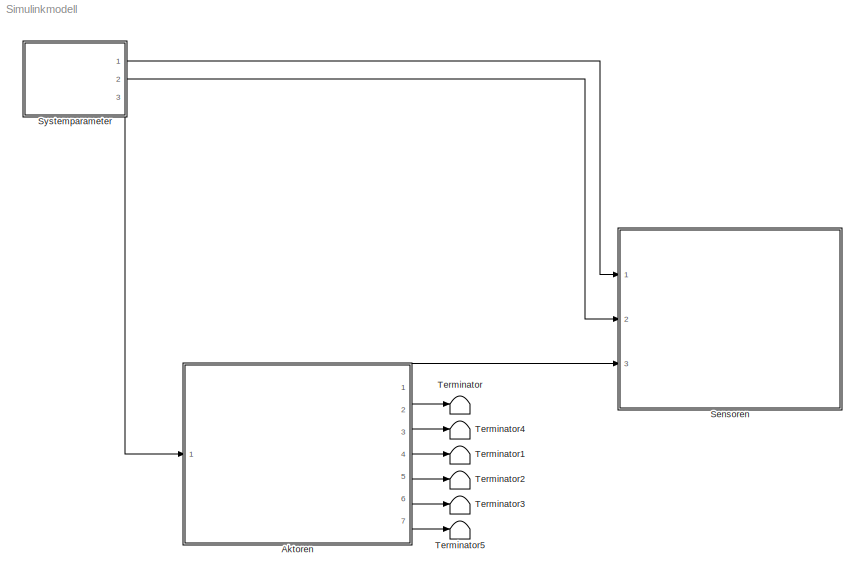
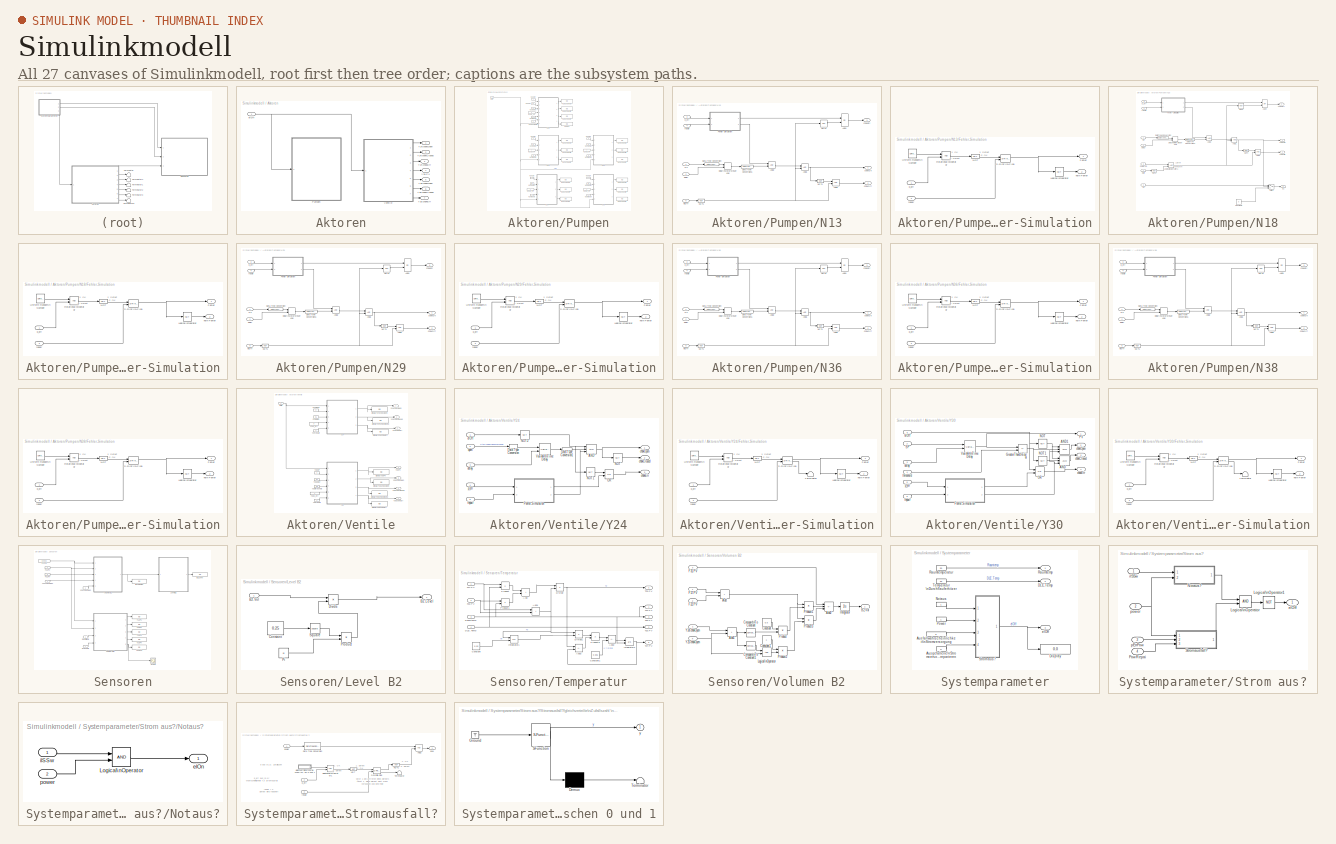
[diagram: thumbnail index - all 27 canvases of the model, root first then tree order]
MODEL Simulinkmodell
KIND model
BLOCK [SubSystem] Aktoren
  Ports = [1, 7]
  RequestExecContextInheritance = off
  SID = 1
  TreatAsAtomicUnit = on
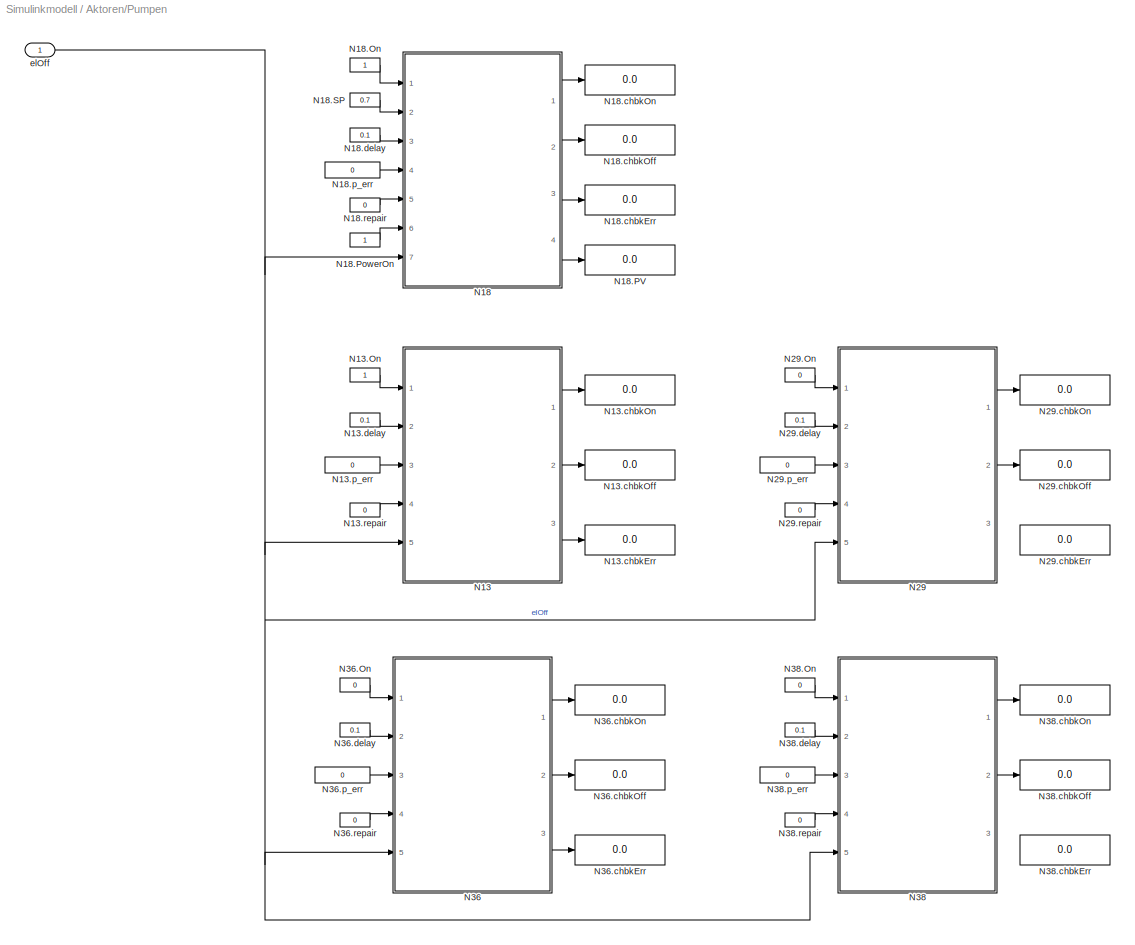
BLOCK [SubSystem] Aktoren/Pumpen
  Ports = [1]
  RequestExecContextInheritance = off
  SID = 3
  TreatAsAtomicUnit = on
BLOCK [SubSystem] Aktoren/Pumpen/N13
  Ports = [5, 3]
  RequestExecContextInheritance = off
  SID = 5
BLOCK [Constant] Aktoren/Pumpen/N13.On
  OutDataTypeStr = boolean
  SID = 35
BLOCK [Display] Aktoren/Pumpen/N13.chbkErr
  Decimation = 1
  Ports = [1]
  SID = 36
BLOCK [Display] Aktoren/Pumpen/N13.chbkOff
  Decimation = 1
  Ports = [1]
  SID = 37
BLOCK [Display] Aktoren/Pumpen/N13.chbkOn
  Decimation = 1
  Ports = [1]
  SID = 38
BLOCK [Constant] Aktoren/Pumpen/N13.delay
  OutDataTypeStr = double
  SID = 39
  Value = 0.1
BLOCK [Constant] Aktoren/Pumpen/N13.p_err
  OutDataTypeStr = double
  SID = 40
  Value = 0
BLOCK [Constant] Aktoren/Pumpen/N13.repair
  OutDataTypeStr = boolean
  SID = 41
  Value = 0
BLOCK [Logic] Aktoren/Pumpen/N13/AND1
  AllPortsSameDT = off
  OutDataTypeStr = boolean
  Ports = [2, 1]
  SID = 11
BLOCK [Logic] Aktoren/Pumpen/N13/AND2
  AllPortsSameDT = off
  OutDataTypeStr = boolean
  Ports = [2, 1]
  SID = 12
BLOCK [Logic] Aktoren/Pumpen/N13/AND3
  AllPortsSameDT = off
  OutDataTypeStr = boolean
  Ports = [2, 1]
  SID = 13
BLOCK [Logic] Aktoren/Pumpen/N13/AND4
  AllPortsSameDT = off
  Operator = OR
  OutDataTypeStr = boolean
  Ports = [2, 1]
  SID = 14
BLOCK [DataTypeConversion] Aktoren/Pumpen/N13/Data Type Conversion
  NameLocation = top
  OutDataTypeStr = double
  RndMeth = Floor
  SID = 15
  SaturateOnIntegerOverflow = off
BLOCK [DataTypeConversion] Aktoren/Pumpen/N13/Data Type Conversion1
  OutDataTypeStr = boolean
  RndMeth = Floor
  SID = 16
  SaturateOnIntegerOverflow = off
BLOCK [VariableTransportDelay] Aktoren/Pumpen/N13/Delay\nMotorsteuerung
  FixedBuffer = on
  MaximumDelay = 10
  Ports = [2, 1]
  SID = 17
BLOCK [SubSystem] Aktoren/Pumpen/N13/Fehler-Simulation
  Ports = [2, 2]
  RequestExecContextInheritance = off
  SID = 335
  TreatAsAtomicUnit = on
BLOCK [Outport] Aktoren/Pumpen/N13/Fehler-Simulation/Fehler
  OutDataTypeStr = boolean
  SID = 343
BLOCK [Logic] Aktoren/Pumpen/N13/Fehler-Simulation/Logical\nOperator
  AllPortsSameDT = off
  Operator = NOT
  OutDataTypeStr = boolean
  Ports = [1, 1]
  SID = 338
BLOCK [Logic] Aktoren/Pumpen/N13/Fehler-Simulation/NOT
  AllPortsSameDT = off
  Operator = NOT
  OutDataTypeStr = boolean
  Ports = [1, 1]
  SID = 339
BLOCK [RelationalOperator] Aktoren/Pumpen/N13/Fehler-Simulation/Relational\nOperator
  InputSameDT = off
  OutDataTypeStr = boolean
  Ports = [2, 1]
  SID = 340
BLOCK [Reference] Aktoren/Pumpen/N13/Fehler-Simulation/S-R\nFlip-Flop  REF=simulink_extras/Flip Flops/S-R\nFlip-Flop
  Ports = [2, 2]
  RTWMemSecDataConstants = Inherit from model
  RTWMemSecDataInternal = Inherit from model
  RTWMemSecDataParameters = Inherit from model
  RTWMemSecFuncExecute = Inherit from model
  RTWMemSecFuncInitTerm = Inherit from model
  SID = 341
  SourceBlock = simulink_extras/Flip Flops/S-R\nFlip-Flop
  SourceProductBaseCode = SL
  SourceType = SRFlipFlop
  initial_condition = 0
BLOCK [UniformRandomNumber] Aktoren/Pumpen/N13/Fehler-Simulation/Uniform Random\nNumber
  Minimum = 0
  SID = 342
  SampleTime = 1
  Seed = 1
BLOCK [Outport] Aktoren/Pumpen/N13/Fehler-Simulation/kein Fehler
  OutDataTypeStr = boolean
  Port = 2
  SID = 344
BLOCK [Inport] Aktoren/Pumpen/N13/Fehler-Simulation/p_err
  OutDataTypeStr = double
  SID = 336
BLOCK [Inport] Aktoren/Pumpen/N13/Fehler-Simulation/repair
  OutDataTypeStr = boolean
  Port = 2
  SID = 337
BLOCK [Logic] Aktoren/Pumpen/N13/NOT1
  AllPortsSameDT = off
  Operator = NOT
  OutDataTypeStr = boolean
  Ports = [1, 1]
  SID = 29
BLOCK [Logic] Aktoren/Pumpen/N13/NOT2
  AllPortsSameDT = off
  Operator = NOT
  OutDataTypeStr = boolean
  Ports = [1, 1]
  SID = 30
BLOCK [Logic] Aktoren/Pumpen/N13/NOT4
  AllPortsSameDT = off
  Operator = NOT
  OutDataTypeStr = boolean
  Ports = [1, 1]
  SID = 31
BLOCK [Inport] Aktoren/Pumpen/N13/On
  OutDataTypeStr = boolean
  SID = 6
BLOCK [Outport] Aktoren/Pumpen/N13/chbkErr
  OutDataTypeStr = boolean
  Port = 3
  SID = 34
BLOCK [Outport] Aktoren/Pumpen/N13/chbkOff
  OutDataTypeStr = boolean
  Port = 2
  SID = 33
BLOCK [Outport] Aktoren/Pumpen/N13/chbkOn
  OutDataTypeStr = boolean
  SID = 32
BLOCK [Inport] Aktoren/Pumpen/N13/delay
  OutDataTypeStr = double
  Port = 2
  SID = 7
BLOCK [Inport] Aktoren/Pumpen/N13/elOff
  OutDataTypeStr = boolean
  Port = 5
  SID = 10
BLOCK [Inport] Aktoren/Pumpen/N13/p_err
  OutDataTypeStr = double
  Port = 3
  SID = 8
BLOCK [Inport] Aktoren/Pumpen/N13/repair
  OutDataTypeStr = boolean
  Port = 4
  SID = 9
BLOCK [SubSystem] Aktoren/Pumpen/N18
  Ports = [7, 4]
  RequestExecContextInheritance = off
  SID = 42
BLOCK [Constant] Aktoren/Pumpen/N18.On
  OutDataTypeStr = boolean
  SID = 79
BLOCK [Display] Aktoren/Pumpen/N18.PV
  Decimation = 1
  Ports = [1]
  SID = 80
BLOCK [Constant] Aktoren/Pumpen/N18.PowerOn
  OutDataTypeStr = boolean
  SID = 81
BLOCK [Constant] Aktoren/Pumpen/N18.SP
  OutDataTypeStr = double
  SID = 82
  Value = 0.7
BLOCK [Display] Aktoren/Pumpen/N18.chbkErr
  Decimation = 1
  Ports = [1]
  SID = 83
BLOCK [Display] Aktoren/Pumpen/N18.chbkOff
  Decimation = 1
  Ports = [1]
  SID = 84
BLOCK [Display] Aktoren/Pumpen/N18.chbkOn
  Decimation = 1
  Ports = [1]
  SID = 85
BLOCK [Constant] Aktoren/Pumpen/N18.delay
  OutDataTypeStr = double
  SID = 86
  Value = 0.1
BLOCK [Constant] Aktoren/Pumpen/N18.p_err
  OutDataTypeStr = double
  SID = 87
  Value = 0
BLOCK [Constant] Aktoren/Pumpen/N18.repair
  OutDataTypeStr = boolean
  SID = 88
  Value = 0
BLOCK [Logic] Aktoren/Pumpen/N18/AND1
  AllPortsSameDT = off
  OutDataTypeStr = boolean
  Ports = [2, 1]
  SID = 50
BLOCK [Logic] Aktoren/Pumpen/N18/AND2
  AllPortsSameDT = off
  OutDataTypeStr = boolean
  Ports = [2, 1]
  SID = 51
BLOCK [Logic] Aktoren/Pumpen/N18/AND3
  AllPortsSameDT = off
  OutDataTypeStr = boolean
  Ports = [2, 1]
  SID = 52
BLOCK [Logic] Aktoren/Pumpen/N18/AND4
  AllPortsSameDT = off
  Operator = OR
  OutDataTypeStr = boolean
  Ports = [2, 1]
  SID = 53
BLOCK [Constant] Aktoren/Pumpen/N18/Constant1
  SID = 54
  Value = 0
BLOCK [DataTypeConversion] Aktoren/Pumpen/N18/Data Type Conversion
  NameLocation = top
  OutDataTypeStr = double
  RndMeth = Floor
  SID = 55
  SaturateOnIntegerOverflow = off
BLOCK [DataTypeConversion] Aktoren/Pumpen/N18/Data Type Conversion1
  OutDataTypeStr = boolean
  RndMeth = Floor
  SID = 56
  SaturateOnIntegerOverflow = off
BLOCK [VariableTransportDelay] Aktoren/Pumpen/N18/Delay\nMotorsteuerung
  FixedBuffer = on
  MaximumDelay = 10
  Ports = [2, 1]
  SID = 57
BLOCK [SubSystem] Aktoren/Pumpen/N18/Fehler-Simulation
  Ports = [2, 2]
  RequestExecContextInheritance = off
  SID = 58
  TreatAsAtomicUnit = on
BLOCK [Outport] Aktoren/Pumpen/N18/Fehler-Simulation/Fehler
  OutDataTypeStr = boolean
  SID = 65
BLOCK [Logic] Aktoren/Pumpen/N18/Fehler-Simulation/Logical\nOperator
  AllPortsSameDT = off
  Operator = NOT
  OutDataTypeStr = boolean
  Ports = [1, 1]
  SID = 334
BLOCK [Logic] Aktoren/Pumpen/N18/Fehler-Simulation/NOT
  AllPortsSameDT = off
  Operator = NOT
  OutDataTypeStr = boolean
  Ports = [1, 1]
  SID = 61
BLOCK [RelationalOperator] Aktoren/Pumpen/N18/Fehler-Simulation/Relational\nOperator
  InputSameDT = off
  OutDataTypeStr = boolean
  Ports = [2, 1]
  SID = 62
BLOCK [Reference] Aktoren/Pumpen/N18/Fehler-Simulation/S-R\nFlip-Flop  REF=simulink_extras/Flip Flops/S-R\nFlip-Flop
  Ports = [2, 2]
  RTWMemSecDataConstants = Inherit from model
  RTWMemSecDataInternal = Inherit from model
  RTWMemSecDataParameters = Inherit from model
  RTWMemSecFuncExecute = Inherit from model
  RTWMemSecFuncInitTerm = Inherit from model
  SID = 63
  SourceBlock = simulink_extras/Flip Flops/S-R\nFlip-Flop
  SourceProductBaseCode = SL
  SourceType = SRFlipFlop
  initial_condition = 0
BLOCK [UniformRandomNumber] Aktoren/Pumpen/N18/Fehler-Simulation/Uniform Random\nNumber
  Minimum = 0
  SID = 64
  SampleTime = 1
  Seed = 1
BLOCK [Outport] Aktoren/Pumpen/N18/Fehler-Simulation/kein Fehler
  OutDataTypeStr = boolean
  Port = 2
  SID = 66
BLOCK [Inport] Aktoren/Pumpen/N18/Fehler-Simulation/p_err
  OutDataTypeStr = double
  SID = 59
BLOCK [Inport] Aktoren/Pumpen/N18/Fehler-Simulation/repair
  OutDataTypeStr = boolean
  Port = 2
  SID = 60
BLOCK [Logic] Aktoren/Pumpen/N18/Logical\nOperator1
  AllPortsSameDT = off
  OutDataTypeStr = boolean
  Ports = [2, 1]
  SID = 69
BLOCK [Logic] Aktoren/Pumpen/N18/NOT1
  AllPortsSameDT = off
  Operator = NOT
  OutDataTypeStr = boolean
  Ports = [1, 1]
  SID = 70
BLOCK [Logic] Aktoren/Pumpen/N18/NOT2
  AllPortsSameDT = off
  Operator = NOT
  OutDataTypeStr = boolean
  Ports = [1, 1]
  SID = 71
BLOCK [Logic] Aktoren/Pumpen/N18/NOT4
  AllPortsSameDT = off
  Operator = NOT
  OutDataTypeStr = boolean
  Ports = [1, 1]
  SID = 72
BLOCK [Inport] Aktoren/Pumpen/N18/On
  OutDataTypeStr = boolean
  SID = 43
BLOCK [Outport] Aktoren/Pumpen/N18/PV
  OutDataTypeStr = double
  Port = 4
  SID = 77
BLOCK [Inport] Aktoren/Pumpen/N18/PowerOn
  OutDataTypeStr = boolean
  Port = 6
  SID = 48
BLOCK [Inport] Aktoren/Pumpen/N18/SP
  OutDataTypeStr = double
  Port = 2
  SID = 44
BLOCK [Switch] Aktoren/Pumpen/N18/Switch
  InputSameDT = off
  SID = 73
  SaturateOnIntegerOverflow = off
  Threshold = 0.5
BLOCK [Outport] Aktoren/Pumpen/N18/chbkErr
  OutDataTypeStr = boolean
  Port = 3
  SID = 76
BLOCK [Outport] Aktoren/Pumpen/N18/chbkOff
  OutDataTypeStr = boolean
  Port = 2
  SID = 75
BLOCK [Outport] Aktoren/Pumpen/N18/chbkOn
  OutDataTypeStr = boolean
  SID = 74
BLOCK [Inport] Aktoren/Pumpen/N18/delay
  OutDataTypeStr = double
  Port = 3
  SID = 45
BLOCK [Inport] Aktoren/Pumpen/N18/elOff
  OutDataTypeStr = boolean
  Port = 7
  SID = 49
BLOCK [Inport] Aktoren/Pumpen/N18/p_err
  OutDataTypeStr = double
  Port = 4
  SID = 46
BLOCK [Inport] Aktoren/Pumpen/N18/repair
  OutDataTypeStr = boolean
  Port = 5
  SID = 47
BLOCK [SubSystem] Aktoren/Pumpen/N29
  Ports = [5, 3]
  RequestExecContextInheritance = off
  SID = 89
BLOCK [Constant] Aktoren/Pumpen/N29.On
  OutDataTypeStr = boolean
  SID = 119
  Value = 0
BLOCK [Display] Aktoren/Pumpen/N29.chbkErr
  Decimation = 1
  Ports = [1]
  SID = 120
BLOCK [Display] Aktoren/Pumpen/N29.chbkOff
  Decimation = 1
  Ports = [1]
  SID = 121
BLOCK [Display] Aktoren/Pumpen/N29.chbkOn
  Decimation = 1
  Ports = [1]
  SID = 122
BLOCK [Constant] Aktoren/Pumpen/N29.delay
  OutDataTypeStr = double
  SID = 123
  Value = 0.1
BLOCK [Constant] Aktoren/Pumpen/N29.p_err
  OutDataTypeStr = double
  SID = 124
  Value = 0
BLOCK [Constant] Aktoren/Pumpen/N29.repair
  OutDataTypeStr = boolean
  SID = 125
  Value = 0
BLOCK [Logic] Aktoren/Pumpen/N29/AND1
  AllPortsSameDT = off
  OutDataTypeStr = boolean
  Ports = [2, 1]
  SID = 95
BLOCK [Logic] Aktoren/Pumpen/N29/AND2
  AllPortsSameDT = off
  OutDataTypeStr = boolean
  Ports = [2, 1]
  SID = 96
BLOCK [Logic] Aktoren/Pumpen/N29/AND3
  AllPortsSameDT = off
  OutDataTypeStr = boolean
  Ports = [2, 1]
  SID = 97
BLOCK [Logic] Aktoren/Pumpen/N29/AND4
  AllPortsSameDT = off
  Operator = OR
  OutDataTypeStr = boolean
  Ports = [2, 1]
  SID = 98
BLOCK [DataTypeConversion] Aktoren/Pumpen/N29/Data Type Conversion
  NameLocation = top
  OutDataTypeStr = double
  RndMeth = Floor
  SID = 99
  SaturateOnIntegerOverflow = off
BLOCK [DataTypeConversion] Aktoren/Pumpen/N29/Data Type Conversion1
  OutDataTypeStr = boolean
  RndMeth = Floor
  SID = 100
  SaturateOnIntegerOverflow = off
BLOCK [VariableTransportDelay] Aktoren/Pumpen/N29/Delay\nMotorsteuerung
  FixedBuffer = on
  MaximumDelay = 10
  Ports = [2, 1]
  SID = 101
BLOCK [SubSystem] Aktoren/Pumpen/N29/Fehler-Simulation
  Ports = [2, 2]
  RequestExecContextInheritance = off
  SID = 347
  TreatAsAtomicUnit = on
BLOCK [Outport] Aktoren/Pumpen/N29/Fehler-Simulation/Fehler
  OutDataTypeStr = boolean
  SID = 355
BLOCK [Logic] Aktoren/Pumpen/N29/Fehler-Simulation/Logical\nOperator
  AllPortsSameDT = off
  Operator = NOT
  OutDataTypeStr = boolean
  Ports = [1, 1]
  SID = 350
BLOCK [Logic] Aktoren/Pumpen/N29/Fehler-Simulation/NOT
  AllPortsSameDT = off
  Operator = NOT
  OutDataTypeStr = boolean
  Ports = [1, 1]
  SID = 351
BLOCK [RelationalOperator] Aktoren/Pumpen/N29/Fehler-Simulation/Relational\nOperator
  InputSameDT = off
  OutDataTypeStr = boolean
  Ports = [2, 1]
  SID = 352
BLOCK [Reference] Aktoren/Pumpen/N29/Fehler-Simulation/S-R\nFlip-Flop  REF=simulink_extras/Flip Flops/S-R\nFlip-Flop
  Ports = [2, 2]
  RTWMemSecDataConstants = Inherit from model
  RTWMemSecDataInternal = Inherit from model
  RTWMemSecDataParameters = Inherit from model
  RTWMemSecFuncExecute = Inherit from model
  RTWMemSecFuncInitTerm = Inherit from model
  SID = 353
  SourceBlock = simulink_extras/Flip Flops/S-R\nFlip-Flop
  SourceProductBaseCode = SL
  SourceType = SRFlipFlop
  initial_condition = 0
BLOCK [UniformRandomNumber] Aktoren/Pumpen/N29/Fehler-Simulation/Uniform Random\nNumber
  Minimum = 0
  SID = 354
  SampleTime = 1
  Seed = 1
BLOCK [Outport] Aktoren/Pumpen/N29/Fehler-Simulation/kein Fehler
  OutDataTypeStr = boolean
  Port = 2
  SID = 356
BLOCK [Inport] Aktoren/Pumpen/N29/Fehler-Simulation/p_err
  OutDataTypeStr = double
  SID = 348
BLOCK [Inport] Aktoren/Pumpen/N29/Fehler-Simulation/repair
  OutDataTypeStr = boolean
  Port = 2
  SID = 349
BLOCK [Logic] Aktoren/Pumpen/N29/NOT1
  AllPortsSameDT = off
  Operator = NOT
  OutDataTypeStr = boolean
  Ports = [1, 1]
  SID = 113
BLOCK [Logic] Aktoren/Pumpen/N29/NOT2
  AllPortsSameDT = off
  Operator = NOT
  OutDataTypeStr = boolean
  Ports = [1, 1]
  SID = 114
BLOCK [Logic] Aktoren/Pumpen/N29/NOT4
  AllPortsSameDT = off
  Operator = NOT
  OutDataTypeStr = boolean
  Ports = [1, 1]
  SID = 115
BLOCK [Inport] Aktoren/Pumpen/N29/On
  OutDataTypeStr = boolean
  SID = 90
BLOCK [Outport] Aktoren/Pumpen/N29/chbkErr
  OutDataTypeStr = boolean
  Port = 3
  SID = 118
BLOCK [Outport] Aktoren/Pumpen/N29/chbkOff
  OutDataTypeStr = boolean
  Port = 2
  SID = 117
BLOCK [Outport] Aktoren/Pumpen/N29/chbkOn
  OutDataTypeStr = boolean
  SID = 116
BLOCK [Inport] Aktoren/Pumpen/N29/delay
  OutDataTypeStr = double
  Port = 2
  SID = 91
BLOCK [Inport] Aktoren/Pumpen/N29/elOff
  OutDataTypeStr = boolean
  Port = 5
  SID = 94
BLOCK [Inport] Aktoren/Pumpen/N29/p_err
  OutDataTypeStr = double
  Port = 3
  SID = 92
BLOCK [Inport] Aktoren/Pumpen/N29/repair
  OutDataTypeStr = boolean
  Port = 4
  SID = 93
BLOCK [SubSystem] Aktoren/Pumpen/N36
  Ports = [5, 3]
  RequestExecContextInheritance = off
  SID = 126
BLOCK [Constant] Aktoren/Pumpen/N36.On
  OutDataTypeStr = boolean
  SID = 156
  Value = 0
BLOCK [Display] Aktoren/Pumpen/N36.chbkErr
  Decimation = 1
  Ports = [1]
  SID = 157
BLOCK [Display] Aktoren/Pumpen/N36.chbkOff
  Decimation = 1
  Ports = [1]
  SID = 158
BLOCK [Display] Aktoren/Pumpen/N36.chbkOn
  Decimation = 1
  Ports = [1]
  SID = 159
BLOCK [Constant] Aktoren/Pumpen/N36.delay
  OutDataTypeStr = double
  SID = 160
  Value = 0.1
BLOCK [Constant] Aktoren/Pumpen/N36.p_err
  OutDataTypeStr = double
  SID = 161
  Value = 0
BLOCK [Constant] Aktoren/Pumpen/N36.repair
  OutDataTypeStr = boolean
  SID = 162
  Value = 0
BLOCK [Logic] Aktoren/Pumpen/N36/AND1
  AllPortsSameDT = off
  OutDataTypeStr = boolean
  Ports = [2, 1]
  SID = 132
BLOCK [Logic] Aktoren/Pumpen/N36/AND2
  AllPortsSameDT = off
  OutDataTypeStr = boolean
  Ports = [2, 1]
  SID = 133
BLOCK [Logic] Aktoren/Pumpen/N36/AND3
  AllPortsSameDT = off
  OutDataTypeStr = boolean
  Ports = [2, 1]
  SID = 134
BLOCK [Logic] Aktoren/Pumpen/N36/AND4
  AllPortsSameDT = off
  Operator = OR
  OutDataTypeStr = boolean
  Ports = [2, 1]
  SID = 135
BLOCK [DataTypeConversion] Aktoren/Pumpen/N36/Data Type Conversion
  NameLocation = top
  OutDataTypeStr = double
  RndMeth = Floor
  SID = 136
  SaturateOnIntegerOverflow = off
BLOCK [DataTypeConversion] Aktoren/Pumpen/N36/Data Type Conversion1
  OutDataTypeStr = boolean
  RndMeth = Floor
  SID = 137
  SaturateOnIntegerOverflow = off
BLOCK [VariableTransportDelay] Aktoren/Pumpen/N36/Delay\nMotorsteuerung
  FixedBuffer = on
  MaximumDelay = 10
  Ports = [2, 1]
  SID = 138
BLOCK [SubSystem] Aktoren/Pumpen/N36/Fehler-Simulation
  Ports = [2, 2]
  RequestExecContextInheritance = off
  SID = 359
  TreatAsAtomicUnit = on
BLOCK [Outport] Aktoren/Pumpen/N36/Fehler-Simulation/Fehler
  OutDataTypeStr = boolean
  SID = 367
BLOCK [Logic] Aktoren/Pumpen/N36/Fehler-Simulation/Logical\nOperator
  AllPortsSameDT = off
  Operator = NOT
  OutDataTypeStr = boolean
  Ports = [1, 1]
  SID = 362
BLOCK [Logic] Aktoren/Pumpen/N36/Fehler-Simulation/NOT
  AllPortsSameDT = off
  Operator = NOT
  OutDataTypeStr = boolean
  Ports = [1, 1]
  SID = 363
BLOCK [RelationalOperator] Aktoren/Pumpen/N36/Fehler-Simulation/Relational\nOperator
  InputSameDT = off
  OutDataTypeStr = boolean
  Ports = [2, 1]
  SID = 364
BLOCK [Reference] Aktoren/Pumpen/N36/Fehler-Simulation/S-R\nFlip-Flop  REF=simulink_extras/Flip Flops/S-R\nFlip-Flop
  Ports = [2, 2]
  RTWMemSecDataConstants = Inherit from model
  RTWMemSecDataInternal = Inherit from model
  RTWMemSecDataParameters = Inherit from model
  RTWMemSecFuncExecute = Inherit from model
  RTWMemSecFuncInitTerm = Inherit from model
  SID = 365
  SourceBlock = simulink_extras/Flip Flops/S-R\nFlip-Flop
  SourceProductBaseCode = SL
  SourceType = SRFlipFlop
  initial_condition = 0
BLOCK [UniformRandomNumber] Aktoren/Pumpen/N36/Fehler-Simulation/Uniform Random\nNumber
  Minimum = 0
  SID = 366
  SampleTime = 1
  Seed = 1
BLOCK [Outport] Aktoren/Pumpen/N36/Fehler-Simulation/kein Fehler
  OutDataTypeStr = boolean
  Port = 2
  SID = 368
BLOCK [Inport] Aktoren/Pumpen/N36/Fehler-Simulation/p_err
  OutDataTypeStr = double
  SID = 360
BLOCK [Inport] Aktoren/Pumpen/N36/Fehler-Simulation/repair
  OutDataTypeStr = boolean
  Port = 2
  SID = 361
BLOCK [Logic] Aktoren/Pumpen/N36/NOT1
  AllPortsSameDT = off
  Operator = NOT
  OutDataTypeStr = boolean
  Ports = [1, 1]
  SID = 150
BLOCK [Logic] Aktoren/Pumpen/N36/NOT2
  AllPortsSameDT = off
  Operator = NOT
  OutDataTypeStr = boolean
  Ports = [1, 1]
  SID = 151
BLOCK [Logic] Aktoren/Pumpen/N36/NOT4
  AllPortsSameDT = off
  Operator = NOT
  OutDataTypeStr = boolean
  Ports = [1, 1]
  SID = 152
BLOCK [Inport] Aktoren/Pumpen/N36/On
  OutDataTypeStr = boolean
  SID = 127
BLOCK [Outport] Aktoren/Pumpen/N36/chbkErr
  OutDataTypeStr = boolean
  Port = 3
  SID = 155
BLOCK [Outport] Aktoren/Pumpen/N36/chbkOff
  OutDataTypeStr = boolean
  Port = 2
  SID = 154
BLOCK [Outport] Aktoren/Pumpen/N36/chbkOn
  OutDataTypeStr = boolean
  SID = 153
BLOCK [Inport] Aktoren/Pumpen/N36/delay
  OutDataTypeStr = double
  Port = 2
  SID = 128
BLOCK [Inport] Aktoren/Pumpen/N36/elOff
  OutDataTypeStr = boolean
  Port = 5
  SID = 131
BLOCK [Inport] Aktoren/Pumpen/N36/p_err
  OutDataTypeStr = double
  Port = 3
  SID = 129
BLOCK [Inport] Aktoren/Pumpen/N36/repair
  OutDataTypeStr = boolean
  Port = 4
  SID = 130
BLOCK [SubSystem] Aktoren/Pumpen/N38
  Ports = [5, 3]
  RequestExecContextInheritance = off
  SID = 163
BLOCK [Constant] Aktoren/Pumpen/N38.On
  OutDataTypeStr = boolean
  SID = 193
  Value = 0
BLOCK [Display] Aktoren/Pumpen/N38.chbkErr
  Decimation = 1
  Ports = [1]
  SID = 194
BLOCK [Display] Aktoren/Pumpen/N38.chbkOff
  Decimation = 1
  Ports = [1]
  SID = 195
BLOCK [Display] Aktoren/Pumpen/N38.chbkOn
  Decimation = 1
  Ports = [1]
  SID = 196
BLOCK [Constant] Aktoren/Pumpen/N38.delay
  OutDataTypeStr = double
  SID = 197
  Value = 0.1
BLOCK [Constant] Aktoren/Pumpen/N38.p_err
  OutDataTypeStr = double
  SID = 198
  Value = 0
BLOCK [Constant] Aktoren/Pumpen/N38.repair
  OutDataTypeStr = boolean
  SID = 199
  Value = 0
BLOCK [Logic] Aktoren/Pumpen/N38/AND1
  AllPortsSameDT = off
  OutDataTypeStr = boolean
  Ports = [2, 1]
  SID = 169
BLOCK [Logic] Aktoren/Pumpen/N38/AND2
  AllPortsSameDT = off
  OutDataTypeStr = boolean
  Ports = [2, 1]
  SID = 170
BLOCK [Logic] Aktoren/Pumpen/N38/AND3
  AllPortsSameDT = off
  OutDataTypeStr = boolean
  Ports = [2, 1]
  SID = 171
BLOCK [Logic] Aktoren/Pumpen/N38/AND4
  AllPortsSameDT = off
  Operator = OR
  OutDataTypeStr = boolean
  Ports = [2, 1]
  SID = 172
BLOCK [DataTypeConversion] Aktoren/Pumpen/N38/Data Type Conversion
  NameLocation = top
  OutDataTypeStr = double
  RndMeth = Floor
  SID = 173
  SaturateOnIntegerOverflow = off
BLOCK [DataTypeConversion] Aktoren/Pumpen/N38/Data Type Conversion1
  OutDataTypeStr = boolean
  RndMeth = Floor
  SID = 174
  SaturateOnIntegerOverflow = off
BLOCK [VariableTransportDelay] Aktoren/Pumpen/N38/Delay\nMotorsteuerung
  FixedBuffer = on
  MaximumDelay = 10
  Ports = [2, 1]
  SID = 175
BLOCK [SubSystem] Aktoren/Pumpen/N38/Fehler-Simulation
  Ports = [2, 2]
  RequestExecContextInheritance = off
  SID = 371
  TreatAsAtomicUnit = on
BLOCK [Outport] Aktoren/Pumpen/N38/Fehler-Simulation/Fehler
  OutDataTypeStr = boolean
  SID = 379
BLOCK [Logic] Aktoren/Pumpen/N38/Fehler-Simulation/Logical\nOperator
  AllPortsSameDT = off
  Operator = NOT
  OutDataTypeStr = boolean
  Ports = [1, 1]
  SID = 374
BLOCK [Logic] Aktoren/Pumpen/N38/Fehler-Simulation/NOT
  AllPortsSameDT = off
  Operator = NOT
  OutDataTypeStr = boolean
  Ports = [1, 1]
  SID = 375
BLOCK [RelationalOperator] Aktoren/Pumpen/N38/Fehler-Simulation/Relational\nOperator
  InputSameDT = off
  OutDataTypeStr = boolean
  Ports = [2, 1]
  SID = 376
BLOCK [Reference] Aktoren/Pumpen/N38/Fehler-Simulation/S-R\nFlip-Flop  REF=simulink_extras/Flip Flops/S-R\nFlip-Flop
  Ports = [2, 2]
  RTWMemSecDataConstants = Inherit from model
  RTWMemSecDataInternal = Inherit from model
  RTWMemSecDataParameters = Inherit from model
  RTWMemSecFuncExecute = Inherit from model
  RTWMemSecFuncInitTerm = Inherit from model
  SID = 377
  SourceBlock = simulink_extras/Flip Flops/S-R\nFlip-Flop
  SourceProductBaseCode = SL
  SourceType = SRFlipFlop
  initial_condition = 0
BLOCK [UniformRandomNumber] Aktoren/Pumpen/N38/Fehler-Simulation/Uniform Random\nNumber
  Minimum = 0
  SID = 378
  SampleTime = 1
  Seed = 1
BLOCK [Outport] Aktoren/Pumpen/N38/Fehler-Simulation/kein Fehler
  OutDataTypeStr = boolean
  Port = 2
  SID = 380
BLOCK [Inport] Aktoren/Pumpen/N38/Fehler-Simulation/p_err
  OutDataTypeStr = double
  SID = 372
BLOCK [Inport] Aktoren/Pumpen/N38/Fehler-Simulation/repair
  OutDataTypeStr = boolean
  Port = 2
  SID = 373
BLOCK [Logic] Aktoren/Pumpen/N38/NOT1
  AllPortsSameDT = off
  Operator = NOT
  OutDataTypeStr = boolean
  Ports = [1, 1]
  SID = 187
BLOCK [Logic] Aktoren/Pumpen/N38/NOT2
  AllPortsSameDT = off
  Operator = NOT
  OutDataTypeStr = boolean
  Ports = [1, 1]
  SID = 188
BLOCK [Logic] Aktoren/Pumpen/N38/NOT4
  AllPortsSameDT = off
  Operator = NOT
  OutDataTypeStr = boolean
  Ports = [1, 1]
  SID = 189
BLOCK [Inport] Aktoren/Pumpen/N38/On
  OutDataTypeStr = boolean
  SID = 164
BLOCK [Outport] Aktoren/Pumpen/N38/chbkErr
  OutDataTypeStr = boolean
  Port = 3
  SID = 192
BLOCK [Outport] Aktoren/Pumpen/N38/chbkOff
  OutDataTypeStr = boolean
  Port = 2
  SID = 191
BLOCK [Outport] Aktoren/Pumpen/N38/chbkOn
  OutDataTypeStr = boolean
  SID = 190
BLOCK [Inport] Aktoren/Pumpen/N38/delay
  OutDataTypeStr = double
  Port = 2
  SID = 165
BLOCK [Inport] Aktoren/Pumpen/N38/elOff
  OutDataTypeStr = boolean
  Port = 5
  SID = 168
BLOCK [Inport] Aktoren/Pumpen/N38/p_err
  OutDataTypeStr = double
  Port = 3
  SID = 166
BLOCK [Inport] Aktoren/Pumpen/N38/repair
  OutDataTypeStr = boolean
  Port = 4
  SID = 167
BLOCK [Inport] Aktoren/Pumpen/elOff
  OutDataTypeStr = boolean
  SID = 4
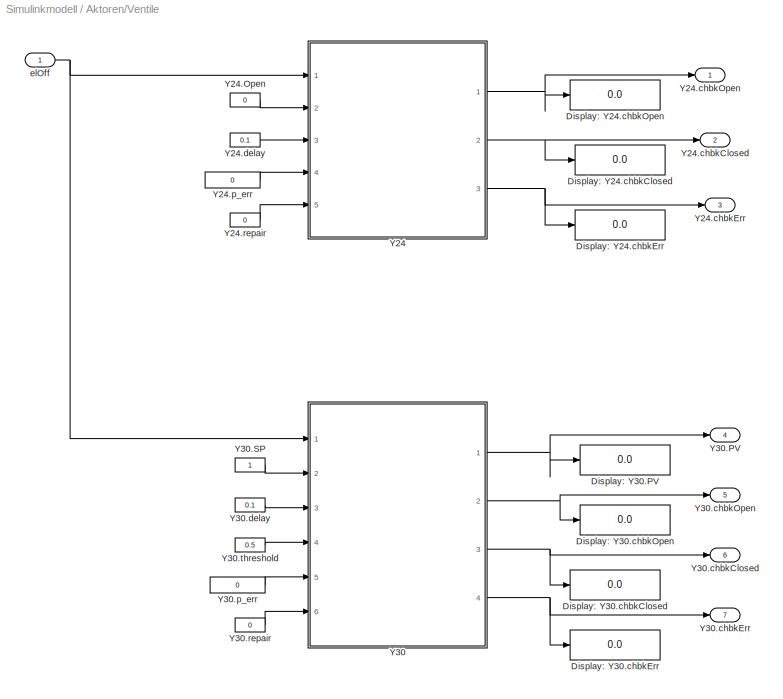
BLOCK [SubSystem] Aktoren/Ventile
  Ports = [1, 7]
  RequestExecContextInheritance = off
  SID = 200
  TreatAsAtomicUnit = on
BLOCK [Display] Aktoren/Ventile/Display: Y24.chbkClosed
  Decimation = 1
  Ports = [1]
  SID = 202
BLOCK [Display] Aktoren/Ventile/Display: Y24.chbkErr
  Decimation = 1
  Ports = [1]
  SID = 203
BLOCK [Display] Aktoren/Ventile/Display: Y24.chbkOpen
  Decimation = 1
  Ports = [1]
  SID = 204
BLOCK [Display] Aktoren/Ventile/Display: Y30.PV
  Decimation = 1
  Ports = [1]
  SID = 205
BLOCK [Display] Aktoren/Ventile/Display: Y30.chbkClosed
  Decimation = 1
  Ports = [1]
  SID = 206
BLOCK [Display] Aktoren/Ventile/Display: Y30.chbkErr
  Decimation = 1
  Ports = [1]
  SID = 207
BLOCK [Display] Aktoren/Ventile/Display: Y30.chbkOpen
  Decimation = 1
  Ports = [1]
  SID = 208
BLOCK [SubSystem] Aktoren/Ventile/Y24
  Ports = [5, 3]
  RequestExecContextInheritance = off
  SID = 209
BLOCK [Constant] Aktoren/Ventile/Y24.Open
  OutDataTypeStr = boolean
  SID = 218
  Value = 0
BLOCK [Outport] Aktoren/Ventile/Y24.chbkClosed
  OutDataTypeStr = boolean
  Port = 2
  SID = 239
BLOCK [Outport] Aktoren/Ventile/Y24.chbkErr
  OutDataTypeStr = boolean
  Port = 3
  SID = 240
BLOCK [Outport] Aktoren/Ventile/Y24.chbkOpen
  OutDataTypeStr = boolean
  SID = 238
BLOCK [Constant] Aktoren/Ventile/Y24.delay
  OutDataTypeStr = double
  SID = 219
  Value = 0.1
BLOCK [Constant] Aktoren/Ventile/Y24.p_err
  OutDataTypeStr = double
  SID = 220
  Value = 0
BLOCK [Constant] Aktoren/Ventile/Y24.repair
  OutDataTypeStr = boolean
  SID = 221
  Value = 0
BLOCK [Logic] Aktoren/Ventile/Y24/AND
  AllPortsSameDT = off
  Inputs = 3
  OutDataTypeStr = boolean
  Ports = [3, 1]
  SID = 449
BLOCK [DataTypeConversion] Aktoren/Ventile/Y24/Data Type Conversion
  OutDataTypeStr = double
  RndMeth = Floor
  SID = 450
  SaturateOnIntegerOverflow = off
BLOCK [DataTypeConversion] Aktoren/Ventile/Y24/Data Type Conversion1
  OutDataTypeStr = boolean
  RndMeth = Floor
  SID = 451
  SaturateOnIntegerOverflow = off
BLOCK [SubSystem] Aktoren/Ventile/Y24/Fehler-Simulation
  Ports = [2, 2]
  RequestExecContextInheritance = off
  SID = 452
  TreatAsAtomicUnit = on
BLOCK [Outport] Aktoren/Ventile/Y24/Fehler-Simulation/Fehler
  OutDataTypeStr = boolean
  SID = 461
BLOCK [Logic] Aktoren/Ventile/Y24/Fehler-Simulation/Logical\nOperator
  AllPortsSameDT = off
  Operator = NOT
  OutDataTypeStr = boolean
  Ports = [1, 1]
  SID = 455
BLOCK [Logic] Aktoren/Ventile/Y24/Fehler-Simulation/NOT
  AllPortsSameDT = off
  Operator = NOT
  OutDataTypeStr = boolean
  Ports = [1, 1]
  SID = 456
BLOCK [RelationalOperator] Aktoren/Ventile/Y24/Fehler-Simulation/Relational\nOperator
  InputSameDT = off
  OutDataTypeStr = boolean
  Ports = [2, 1]
  SID = 457
BLOCK [Reference] Aktoren/Ventile/Y24/Fehler-Simulation/S-R\nFlip-Flop  REF=simulink_extras/Flip Flops/S-R\nFlip-Flop
  Ports = [2, 2]
  RTWMemSecDataConstants = Inherit from model
  RTWMemSecDataInternal = Inherit from model
  RTWMemSecDataParameters = Inherit from model
  RTWMemSecFuncExecute = Inherit from model
  RTWMemSecFuncInitTerm = Inherit from model
  SID = 458
  SourceBlock = simulink_extras/Flip Flops/S-R\nFlip-Flop
  SourceProductBaseCode = SL
  SourceType = SRFlipFlop
  initial_condition = 0
BLOCK [Terminator] Aktoren/Ventile/Y24/Fehler-Simulation/Terminator
  SID = 459
BLOCK [UniformRandomNumber] Aktoren/Ventile/Y24/Fehler-Simulation/Uniform Random\nNumber
  Minimum = 0
  SID = 460
  SampleTime = 1
  Seed = 1
BLOCK [Outport] Aktoren/Ventile/Y24/Fehler-Simulation/kein Fehler
  OutDataTypeStr = boolean
  Port = 2
  SID = 462
BLOCK [Inport] Aktoren/Ventile/Y24/Fehler-Simulation/p_err
  OutDataTypeStr = double
  SID = 453
BLOCK [Inport] Aktoren/Ventile/Y24/Fehler-Simulation/repair
  OutDataTypeStr = boolean
  Port = 2
  SID = 454
BLOCK [Logic] Aktoren/Ventile/Y24/NOT
  AllPortsSameDT = off
  Operator = NOT
  OutDataTypeStr = boolean
  Ports = [1, 1]
  SID = 465
BLOCK [Logic] Aktoren/Ventile/Y24/NOT1
  AllPortsSameDT = off
  Operator = NOT
  OutDataTypeStr = boolean
  Ports = [1, 1]
  SID = 466
BLOCK [Logic] Aktoren/Ventile/Y24/NOT2
  AllPortsSameDT = off
  Operator = NOT
  OutDataTypeStr = boolean
  Ports = [1, 1]
  SID = 467
BLOCK [Logic] Aktoren/Ventile/Y24/OR
  AllPortsSameDT = off
  Operator = OR
  OutDataTypeStr = boolean
  Ports = [2, 1]
  SID = 468
BLOCK [VariableTransportDelay] Aktoren/Ventile/Y24/Variable\nTime Delay
  MaximumDelay = 10
  Ports = [2, 1]
  SID = 469
  VariableDelayType = Variable transport delay
BLOCK [Outport] Aktoren/Ventile/Y24/chbkClosed
  OutDataTypeStr = boolean
  Port = 2
  SID = 216
BLOCK [Outport] Aktoren/Ventile/Y24/chbkErr
  OutDataTypeStr = boolean
  Port = 3
  SID = 217
BLOCK [Outport] Aktoren/Ventile/Y24/chbkOpen
  OutDataTypeStr = boolean
  SID = 215
BLOCK [Inport] Aktoren/Ventile/Y24/delay
  OutDataTypeStr = double
  Port = 3
  SID = 212
BLOCK [Inport] Aktoren/Ventile/Y24/elOff
  OutDataTypeStr = boolean
  SID = 210
BLOCK [Inport] Aktoren/Ventile/Y24/open
  OutDataTypeStr = boolean
  Port = 2
  SID = 211
BLOCK [Inport] Aktoren/Ventile/Y24/p_err
  OutDataTypeStr = double
  Port = 4
  SID = 213
BLOCK [Inport] Aktoren/Ventile/Y24/repair
  OutDataTypeStr = boolean
  Port = 5
  SID = 214
BLOCK [SubSystem] Aktoren/Ventile/Y30
  Ports = [6, 4]
  RequestExecContextInheritance = off
  SID = 222
BLOCK [Outport] Aktoren/Ventile/Y30.PV
  OutDataTypeStr = double
  Port = 4
  SID = 241
BLOCK [Constant] Aktoren/Ventile/Y30.SP
  OutDataTypeStr = double
  SID = 233
BLOCK [Outport] Aktoren/Ventile/Y30.chbkClosed
  OutDataTypeStr = boolean
  Port = 6
  SID = 243
BLOCK [Outport] Aktoren/Ventile/Y30.chbkErr
  OutDataTypeStr = boolean
  Port = 7
  SID = 244
BLOCK [Outport] Aktoren/Ventile/Y30.chbkOpen
  OutDataTypeStr = boolean
  Port = 5
  SID = 242
BLOCK [Constant] Aktoren/Ventile/Y30.delay
  OutDataTypeStr = double
  SID = 234
  Value = 0.1
BLOCK [Constant] Aktoren/Ventile/Y30.p_err
  OutDataTypeStr = double
  SID = 235
  Value = 0
BLOCK [Constant] Aktoren/Ventile/Y30.repair
  OutDataTypeStr = boolean
  SID = 236
  Value = 0
BLOCK [Constant] Aktoren/Ventile/Y30.threshold
  OutDataTypeStr = double
  SID = 237
  Value = 0.5
BLOCK [Logic] Aktoren/Ventile/Y30/AND
  AllPortsSameDT = off
  Inputs = 3
  OutDataTypeStr = boolean
  Ports = [3, 1]
  SID = 470
BLOCK [Logic] Aktoren/Ventile/Y30/AND1
  AllPortsSameDT = off
  Inputs = 3
  OutDataTypeStr = boolean
  Ports = [3, 1]
  SID = 471
BLOCK [SubSystem] Aktoren/Ventile/Y30/Fehler-Simulation
  Ports = [2, 2]
  RequestExecContextInheritance = off
  SID = 472
  TreatAsAtomicUnit = on
BLOCK [Outport] Aktoren/Ventile/Y30/Fehler-Simulation/Fehler
  OutDataTypeStr = boolean
  SID = 481
BLOCK [Logic] Aktoren/Ventile/Y30/Fehler-Simulation/Logical\nOperator
  AllPortsSameDT = off
  Operator = NOT
  OutDataTypeStr = boolean
  Ports = [1, 1]
  SID = 475
BLOCK [Logic] Aktoren/Ventile/Y30/Fehler-Simulation/NOT
  AllPortsSameDT = off
  Operator = NOT
  OutDataTypeStr = boolean
  Ports = [1, 1]
  SID = 476
BLOCK [RelationalOperator] Aktoren/Ventile/Y30/Fehler-Simulation/Relational\nOperator
  InputSameDT = off
  OutDataTypeStr = boolean
  Ports = [2, 1]
  SID = 477
BLOCK [Reference] Aktoren/Ventile/Y30/Fehler-Simulation/S-R\nFlip-Flop  REF=simulink_extras/Flip Flops/S-R\nFlip-Flop
  Ports = [2, 2]
  RTWMemSecDataConstants = Inherit from model
  RTWMemSecDataInternal = Inherit from model
  RTWMemSecDataParameters = Inherit from model
  RTWMemSecFuncExecute = Inherit from model
  RTWMemSecFuncInitTerm = Inherit from model
  SID = 478
  SourceBlock = simulink_extras/Flip Flops/S-R\nFlip-Flop
  SourceProductBaseCode = SL
  SourceType = SRFlipFlop
  initial_condition = 0
BLOCK [Terminator] Aktoren/Ventile/Y30/Fehler-Simulation/Terminator
  SID = 479
BLOCK [UniformRandomNumber] Aktoren/Ventile/Y30/Fehler-Simulation/Uniform Random\nNumber
  Minimum = 0
  SID = 480
  SampleTime = 1
  Seed = 1
BLOCK [Outport] Aktoren/Ventile/Y30/Fehler-Simulation/kein Fehler
  OutDataTypeStr = boolean
  Port = 2
  SID = 482
BLOCK [Inport] Aktoren/Ventile/Y30/Fehler-Simulation/p_err
  OutDataTypeStr = double
  SID = 473
BLOCK [Inport] Aktoren/Ventile/Y30/Fehler-Simulation/repair
  OutDataTypeStr = boolean
  Port = 2
  SID = 474
BLOCK [RelationalOperator] Aktoren/Ventile/Y30/GreaterThanOrEqual
  InputSameDT = off
  Operator = <=
  OutDataTypeStr = boolean
  Ports = [2, 1]
  RndMeth = Simplest
  SID = 485
BLOCK [Logic] Aktoren/Ventile/Y30/NOT
  AllPortsSameDT = off
  Operator = NOT
  OutDataTypeStr = boolean
  Ports = [1, 1]
  SID = 486
BLOCK [Logic] Aktoren/Ventile/Y30/NOT1
  AllPortsSameDT = off
  Operator = NOT
  OutDataTypeStr = boolean
  Ports = [1, 1]
  SID = 487
BLOCK [Logic] Aktoren/Ventile/Y30/OR
  AllPortsSameDT = off
  Operator = OR
  OutDataTypeStr = boolean
  Ports = [2, 1]
  SID = 488
BLOCK [Outport] Aktoren/Ventile/Y30/PV
  OutDataTypeStr = double
  SID = 229
BLOCK [Inport] Aktoren/Ventile/Y30/SP
  OutDataTypeStr = double
  Port = 2
  SID = 224
BLOCK [VariableTransportDelay] Aktoren/Ventile/Y30/Variable\nTime Delay
  MaximumDelay = 10
  Ports = [2, 1]
  SID = 489
BLOCK [Outport] Aktoren/Ventile/Y30/chbkClosed
  OutDataTypeStr = boolean
  Port = 3
  SID = 231
BLOCK [Outport] Aktoren/Ventile/Y30/chbkErr
  OutDataTypeStr = boolean
  Port = 4
  SID = 232
BLOCK [Outport] Aktoren/Ventile/Y30/chbkOpen
  OutDataTypeStr = boolean
  Port = 2
  SID = 230
BLOCK [Inport] Aktoren/Ventile/Y30/delay
  OutDataTypeStr = double
  Port = 3
  SID = 225
BLOCK [Inport] Aktoren/Ventile/Y30/elOff
  OutDataTypeStr = boolean
  SID = 223
BLOCK [Inport] Aktoren/Ventile/Y30/p_err
  OutDataTypeStr = double
  Port = 5
  SID = 227
BLOCK [Inport] Aktoren/Ventile/Y30/repair
  OutDataTypeStr = boolean
  Port = 6
  SID = 228
BLOCK [Inport] Aktoren/Ventile/Y30/threshold
  OutDataTypeStr = double
  Port = 4
  SID = 226
BLOCK [Inport] Aktoren/Ventile/elOff
  OutDataTypeStr = boolean
  SID = 201
BLOCK [Outport] Aktoren/Y24.chbkClosed
  OutDataTypeStr = boolean
  Port = 2
  SID = 246
BLOCK [Outport] Aktoren/Y24.chbkErr
  OutDataTypeStr = boolean
  Port = 3
  SID = 247
BLOCK [Outport] Aktoren/Y24.chbkOpen
  OutDataTypeStr = boolean
  SID = 245
BLOCK [Outport] Aktoren/Y30.PV
  OutDataTypeStr = double
  Port = 4
  SID = 248
BLOCK [Outport] Aktoren/Y30.chbkClosed
  OutDataTypeStr = boolean
  Port = 6
  SID = 250
BLOCK [Outport] Aktoren/Y30.chbkErr
  OutDataTypeStr = boolean
  Port = 7
  SID = 251
BLOCK [Outport] Aktoren/Y30.chbkOpen
  OutDataTypeStr = boolean
  Port = 5
  SID = 249
BLOCK [Inport] Aktoren/elOff
  OutDataTypeStr = boolean
  SID = 2
BLOCK [SubSystem] Sensoren
  Ports = [3]
  RequestExecContextInheritance = off
  SID = 252
  TreatAsAtomicUnit = on
BLOCK [Display] Sensoren/B2.Volumen
  Decimation = 1
  Ports = [1]
  SID = 256
BLOCK [Display] Sensoren/B3.Level
  Decimation = 1
  Ports = [1]
  SID = 257
BLOCK [Inport] Sensoren/DLE.Temp
  OutDataTypeStr = double
  Port = 2
  SID = 254
BLOCK [Constant] Sensoren/F17.PV
  OutDataTypeStr = double
  SID = 258
  Value = 0.44e-3
BLOCK [Constant] Sensoren/F22.PV
  OutDataTypeStr = double
  SID = 259
  Value = 0
BLOCK [Constant] Sensoren/F31.PV
  OutDataTypeStr = double
  SID = 260
  Value = 0
BLOCK [SubSystem] Sensoren/Level B2
  Ports = [1, 1]
  RequestExecContextInheritance = off
  SID = 261
BLOCK [Outport] Sensoren/Level B2/B2.Level
  SID = 263
BLOCK [Inport] Sensoren/Level B2/B2.Vol
  SID = 262
BLOCK [Constant] Sensoren/Level B2/Constant
  SID = 404
  Value = 0.25
BLOCK [Product] Sensoren/Level B2/Divide
  Inputs = */
  Ports = [2, 1]
  SID = 405
BLOCK [Constant] Sensoren/Level B2/Pi
  OutDataTypeStr = Inherit: Inherit via back propagation
  SID = 406
  Value = pi
BLOCK [Product] Sensoren/Level B2/Product
  Ports = [2, 1]
  SID = 410
BLOCK [Math] Sensoren/Level B2/Square
  Operator = square
  Ports = [1, 1]
  SID = 409
BLOCK [Inport] Sensoren/Raumtemp
  OutDataTypeStr = double
  SID = 253
BLOCK [Scope] Sensoren/Scope
  Floating = off
  NumInputPorts = 1
  Ports = [1]
  SID = 403
  ScopeSpecificationString = Simulink.scopes.TimeScopeBlockCfg('CurrentConfiguration', extmgr.ConfigurationSet(extmgr.Configuration('Core','General UI',true),extmgr.Configuration('Core','Source UI',true),extmgr.Configuration('Sources','WiredSimulink',true),extmgr.Configuration('Visuals','Time Domain',true,'SerializedDisplays',{struct('MinYLimReal','-152.63608','MaxYLimReal','68.12821','YLabelReal','','MinYLimMag',' 0.00000','...<+1421ch>
BLOCK [Display] Sensoren/T12.PV
  Decimation = 1
  Ports = [1]
  SID = 264
BLOCK [Display] Sensoren/T15.PV
  Decimation = 1
  Ports = [1]
  SID = 265
BLOCK [Display] Sensoren/T20.PV
  Decimation = 1
  Ports = [1]
  SID = 266
BLOCK [Display] Sensoren/T23.PV
  Decimation = 1
  Ports = [1]
  SID = 267
BLOCK [Display] Sensoren/T23.PV1
  Decimation = 1
  Ports = [1]
  SID = 384
BLOCK [SubSystem] Sensoren/Temperatur
  Ports = [4, 5]
  RequestExecContextInheritance = off
  SID = 268
BLOCK [Sum] Sensoren/Temperatur/Add
  IconShape = rectangular
  Ports = [2, 1]
  SID = 391
BLOCK [Sum] Sensoren/Temperatur/Add1
  IconShape = rectangular
  Ports = [2, 1]
  SID = 396
BLOCK [Sum] Sensoren/Temperatur/Add2
  IconShape = rectangular
  Inputs = +-
  Ports = [2, 1]
  SID = 507
BLOCK [Sum] Sensoren/Temperatur/Add3
  IconShape = rectangular
  Inputs = +-
  Ports = [2, 1]
  SID = 400
BLOCK [Constant] Sensoren/Temperatur/Constant
  SID = 392
  Value = 0.03
BLOCK [Constant] Sensoren/Temperatur/Constant1
  SID = 506
  Value = 0.001
BLOCK [Inport] Sensoren/Temperatur/DLE.Temp
  OutDataTypeStr = double
  Port = 4
  SID = 272
BLOCK [Product] Sensoren/Temperatur/Divide
  Inputs = */
  Ports = [2, 1]
  SID = 390
BLOCK [Product] Sensoren/Temperatur/Divide1
  Inputs = */
  Ports = [2, 1]
  SID = 398
BLOCK [Inport] Sensoren/Temperatur/F17.PV
  OutDataTypeStr = double
  SID = 269
BLOCK [Inport] Sensoren/Temperatur/F22.PV
  OutDataTypeStr = double
  Port = 2
  SID = 270
BLOCK [Integrator] Sensoren/Temperatur/Integrator1
  InitialConditionSource = external
  Ports = [2, 1]
  SID = 502
BLOCK [Integrator] Sensoren/Temperatur/Integrator2
  InitialConditionSource = external
  Ports = [2, 1]
  SID = 505
BLOCK [Product] Sensoren/Temperatur/Product
  Ports = [2, 1]
  SID = 389
BLOCK [Product] Sensoren/Temperatur/Product1
  Ports = [2, 1]
  SID = 394
BLOCK [Product] Sensoren/Temperatur/Product3
  Ports = [2, 1]
  SID = 399
BLOCK [Inport] Sensoren/Temperatur/Raumtemp
  OutDataTypeStr = double
  Port = 3
  SID = 271
BLOCK [Outport] Sensoren/Temperatur/T12.PV
  OutDataTypeStr = double
  SID = 273
BLOCK [Outport] Sensoren/Temperatur/T15.PV
  OutDataTypeStr = double
  Port = 2
  SID = 274
BLOCK [Outport] Sensoren/Temperatur/T20.PV
  OutDataTypeStr = double
  Port = 3
  SID = 275
BLOCK [Outport] Sensoren/Temperatur/T23.PV
  OutDataTypeStr = double
  Port = 4
  SID = 276
BLOCK [Outport] Sensoren/Temperatur/T27.PV
  OutDataTypeStr = double
  Port = 5
  SID = 383
BLOCK [SubSystem] Sensoren/Volumen B2
  Ports = [5, 1]
  RequestExecContextInheritance = off
  SID = 277
BLOCK [Sum] Sensoren/Volumen B2/Add
  IconShape = rectangular
  Ports = [2, 1]
  SID = 411
BLOCK [Sum] Sensoren/Volumen B2/Add1
  IconShape = rectangular
  Ports = [2, 1]
  SID = 414
BLOCK [Sum] Sensoren/Volumen B2/Add2
  IconShape = rectangular
  Inputs = -++
  Ports = [3, 1]
  SID = 420
BLOCK [Outport] Sensoren/Volumen B2/B2.Vol
  SID = 283
BLOCK [Reference] Sensoren/Volumen B2/Compare\nTo Constant  REF=simulink/Logic and Bit\nOperations/Compare\nTo Constant
  OutDataTypeStr = boolean
  Ports = [1, 1]
  RTWMemSecDataConstants = Inherit from model
  RTWMemSecDataInternal = Inherit from model
  RTWMemSecDataParameters = Inherit from model
  RTWMemSecFuncExecute = Inherit from model
  RTWMemSecFuncInitTerm = Inherit from model
  SID = 413
  SourceBlock = simulink/Logic and Bit\nOperations/Compare\nTo Constant
  SourceProductBaseCode = SL
  SourceType = Compare To Constant
  ZeroCross = on
  const = 1.5
  relop = >=
BLOCK [Reference] Sensoren/Volumen B2/Compare\nTo Constant1  REF=simulink/Logic and Bit\nOperations/Compare\nTo Constant
  OutDataTypeStr = boolean
  Ports = [1, 1]
  RTWMemSecDataConstants = Inherit from model
  RTWMemSecDataInternal = Inherit from model
  RTWMemSecDataParameters = Inherit from model
  RTWMemSecFuncExecute = Inherit from model
  RTWMemSecFuncInitTerm = Inherit from model
  SID = 421
  SourceBlock = simulink/Logic and Bit\nOperations/Compare\nTo Constant
  SourceProductBaseCode = SL
  SourceType = Compare To Constant
  ZeroCross = on
  const = 1.5
  relop = <
BLOCK [Constant] Sensoren/Volumen B2/Constant
  SID = 417
  Value = 0.5
BLOCK [Constant] Sensoren/Volumen B2/Constant1
  SID = 424
BLOCK [Inport] Sensoren/Volumen B2/F17.PV
  OutDataTypeStr = double
  SID = 278
BLOCK [Inport] Sensoren/Volumen B2/F22.PV
  OutDataTypeStr = double
  Port = 2
  SID = 279
BLOCK [Inport] Sensoren/Volumen B2/F31.PV
  OutDataTypeStr = double
  Port = 3
  SID = 280
BLOCK [Integrator] Sensoren/Volumen B2/Integrator
  Ports = [1, 1]
  SID = 492
BLOCK [Logic] Sensoren/Volumen B2/Logical\nOperator
  AllPortsSameDT = off
  OutDataTypeStr = boolean
  Ports = [2, 1]
  SID = 422
BLOCK [Product] Sensoren/Volumen B2/Product
  Ports = [2, 1]
  SID = 416
BLOCK [Product] Sensoren/Volumen B2/Product1
  Ports = [2, 1]
  SID = 418
BLOCK [Product] Sensoren/Volumen B2/Product2
  Ports = [2, 1]
  SID = 423
BLOCK [Product] Sensoren/Volumen B2/Product3
  Ports = [2, 1]
  SID = 499
BLOCK [Inport] Sensoren/Volumen B2/Y24.chbkOpen
  OutDataTypeStr = boolean
  Port = 4
  SID = 281
BLOCK [Inport] Sensoren/Volumen B2/Y25.chbkOpen
  OutDataTypeStr = boolean
  Port = 5
  SID = 282
BLOCK [Inport] Sensoren/Y24.chbkOpen
  OutDataTypeStr = boolean
  Port = 3
  SID = 255
BLOCK [Constant] Sensoren/Y25chbkOpen
  OutDataTypeStr = boolean
  SID = 284
BLOCK [SubSystem] Systemparameter
  Ports = [0, 3]
  RequestExecContextInheritance = off
  SID = 285
  TreatAsAtomicUnit = on
BLOCK [Constant] Systemparameter/Ausfallwahrscheinlichkeit\nStromversorgung
  OutDataTypeStr = double
  SID = 286
  Value = 0
BLOCK [Constant] Systemparameter/Ausgefallene\nStromversorgung\nreparieren
  OutDataTypeStr = boolean
  SID = 287
  Value = 0
BLOCK [Outport] Systemparameter/DLE.Temp
  OutDataTypeStr = double
  Port = 2
  SID = 326
BLOCK [Display] Systemparameter/Display
  Decimation = 1
  Ports = [1]
  SID = 490
BLOCK [Constant] Systemparameter/Notaus
  OutDataTypeStr = boolean
  SID = 288
BLOCK [Constant] Systemparameter/Power
  OutDataTypeStr = boolean
  SID = 289
BLOCK [Outport] Systemparameter/Raumtemp
  OutDataTypeStr = double
  SID = 325
BLOCK [Constant] Systemparameter/Raumtemperatur
  OutDataTypeStr = double
  SID = 290
  Value = 20
BLOCK [SubSystem] Systemparameter/Strom aus?
  Ports = [4, 1]
  RequestExecContextInheritance = off
  SID = 291
BLOCK [Logic] Systemparameter/Strom aus?/Logical\nOperator
  AllPortsSameDT = off
  OutDataTypeStr = boolean
  Ports = [2, 1]
  SID = 296
BLOCK [Logic] Systemparameter/Strom aus?/Logical\nOperator1
  AllPortsSameDT = off
  Operator = NOT
  OutDataTypeStr = boolean
  Ports = [1, 1]
  SID = 297
BLOCK [SubSystem] Systemparameter/Strom aus?/Notaus?
  Ports = [2, 1]
  RequestExecContextInheritance = off
  SID = 298
  TreatAsAtomicUnit = on
BLOCK [Logic] Systemparameter/Strom aus?/Notaus?/Logical\nOperator
  AllPortsSameDT = off
  OutDataTypeStr = boolean
  Ports = [2, 1]
  SID = 301
BLOCK [Outport] Systemparameter/Strom aus?/Notaus?/elOn
  SID = 302
BLOCK [Inport] Systemparameter/Strom aus?/Notaus?/ilSSw
  SID = 299
BLOCK [Inport] Systemparameter/Strom aus?/Notaus?/power
  Port = 2
  SID = 300
BLOCK [Inport] Systemparameter/Strom aus?/PowRepai
  OutDataTypeStr = boolean
  Port = 4
  SID = 295
BLOCK [SubSystem] Systemparameter/Strom aus?/Stromausfall?
  Ports = [3, 1]
  RequestExecContextInheritance = off
  SID = 303
  TreatAsAtomicUnit = on
BLOCK [Logic] Systemparameter/Strom aus?/Stromausfall?/AND2
  AllPortsSameDT = off
  OutDataTypeStr = boolean
  Ports = [2, 1]
  SID = 307
BLOCK [DataTypeConversion] Systemparameter/Strom aus?/Stromausfall?/Data Type Conversion
  OutDataTypeStr = boolean
  RndMeth = Floor
  SID = 308
  SaturateOnIntegerOverflow = off
BLOCK [Logic] Systemparameter/Strom aus?/Stromausfall?/NOT
  AllPortsSameDT = off
  Operator = NOT
  OutDataTypeStr = boolean
  Ports = [1, 1]
  SID = 309
BLOCK [Logic] Systemparameter/Strom aus?/Stromausfall?/NOT1
  AllPortsSameDT = off
  Operator = NOT
  OutDataTypeStr = boolean
  Ports = [1, 1]
  SID = 310
BLOCK [RelationalOperator] Systemparameter/Strom aus?/Stromausfall?/Relational\nOperator1
  InputSameDT = off
  OutDataTypeStr = boolean
  Ports = [2, 1]
  SID = 311
BLOCK [Reference] Systemparameter/Strom aus?/Stromausfall?/S-R\nFlip-Flop  REF=simulink_extras/Flip Flops/S-R\nFlip-Flop
  Ports = [2, 2]
  RTWMemSecDataConstants = Inherit from model
  RTWMemSecDataInternal = Inherit from model
  RTWMemSecDataParameters = Inherit from model
  RTWMemSecFuncExecute = Inherit from model
  RTWMemSecFuncInitTerm = Inherit from model
  SID = 312
  SourceBlock = simulink_extras/Flip Flops/S-R\nFlip-Flop
  SourceProductBaseCode = SL
  SourceType = SRFlipFlop
  initial_condition = 0
BLOCK [Terminator] Systemparameter/Strom aus?/Stromausfall?/Terminator
  SID = 313
BLOCK [SubSystem] Systemparameter/Strom aus?/Stromausfall?/gleichverteilte\nZufallszahl \nzwischen 0 und 1
  ErrorFcn = Stateflow.Translate.translate
  PermitHierarchicalResolution = ExplicitOnly
  Ports = [0, 1]
  RequestExecContextInheritance = off
  SFBlockType = MATLAB Function
  SID = 314
  TreatAsAtomicUnit = on
BLOCK [Demux] Systemparameter/Strom aus?/Stromausfall?/gleichverteilte\nZufallszahl \nzwischen 0 und 1/ Demux 
  Outputs = 1
  Ports = [1, 1]
  SID = 314::11
BLOCK [Ground] Systemparameter/Strom aus?/Stromausfall?/gleichverteilte\nZufallszahl \nzwischen 0 und 1/ Ground 
  SID = 314::13
BLOCK [S-Function] Systemparameter/Strom aus?/Stromausfall?/gleichverteilte\nZufallszahl \nzwischen 0 und 1/ SFunction 
  EnableBusSupport = on
  FunctionName = sf_sfun
  PortCounts = [1 2]
  Ports = [1, 2]
  SFcnIsStateOwnerBlock = off
  SFunctionDeploymentMode = off
  SID = 314::10
  Tag = Stateflow S-Function 21
BLOCK [Terminator] Systemparameter/Strom aus?/Stromausfall?/gleichverteilte\nZufallszahl \nzwischen 0 und 1/ Terminator 
  SID = 314::12
BLOCK [Outport] Systemparameter/Strom aus?/Stromausfall?/gleichverteilte\nZufallszahl \nzwischen 0 und 1/y
  SID = 314::5
BLOCK [Inport] Systemparameter/Strom aus?/Stromausfall?/p_err
  Port = 2
  SID = 305
BLOCK [Outport] Systemparameter/Strom aus?/Stromausfall?/pow
  SID = 315
BLOCK [Inport] Systemparameter/Strom aus?/Stromausfall?/power
  SID = 304
BLOCK [Inport] Systemparameter/Strom aus?/Stromausfall?/repair
  OutDataTypeStr = boolean
  Port = 3
  SID = 306
BLOCK [Outport] Systemparameter/Strom aus?/elOff
  OutDataTypeStr = boolean
  SID = 323
BLOCK [Inport] Systemparameter/Strom aus?/ilSSw
  SID = 292
BLOCK [Inport] Systemparameter/Strom aus?/pErrPow
  OutDataTypeStr = double
  Port = 3
  SID = 294
BLOCK [Inport] Systemparameter/Strom aus?/power
  Port = 2
  SID = 293
BLOCK [Constant] Systemparameter/Temperatur \nDurchflauferhitzer
  OutDataTypeStr = double
  SID = 324
  Value = 40
BLOCK [Outport] Systemparameter/elOff
  OutDataTypeStr = boolean
  Port = 3
  SID = 327
BLOCK [Terminator] Terminator
  SID = 328
BLOCK [Terminator] Terminator1
  SID = 329
BLOCK [Terminator] Terminator2
  SID = 330
BLOCK [Terminator] Terminator3
  NameLocation = top
  SID = 331
BLOCK [Terminator] Terminator4
  SID = 332
BLOCK [Terminator] Terminator5
  SID = 333
ANNOTATION Aktoren/Pumpen/N13/Fehler-Simulation: 1: Defekt\n0: OK
ANNOTATION Aktoren/Pumpen/N13/Fehler-Simulation: 1: OK\n0: Defekt
ANNOTATION Aktoren/Pumpen/N18: 1: Strom\n0: kein Strom
ANNOTATION Aktoren/Pumpen/N18/Fehler-Simulation: 1: Defekt\n0: OK
ANNOTATION Aktoren/Pumpen/N18/Fehler-Simulation: 1: OK\n0: Defekt
ANNOTATION Aktoren/Pumpen/N29/Fehler-Simulation: 1: Defekt\n0: OK
ANNOTATION Aktoren/Pumpen/N29/Fehler-Simulation: 1: OK\n0: Defekt
ANNOTATION Aktoren/Pumpen/N36/Fehler-Simulation: 1: Defekt\n0: OK
ANNOTATION Aktoren/Pumpen/N36/Fehler-Simulation: 1: OK\n0: Defekt
ANNOTATION Aktoren/Pumpen/N38/Fehler-Simulation: 1: Defekt\n0: OK
ANNOTATION Aktoren/Pumpen/N38/Fehler-Simulation: 1: OK\n0: Defekt
ANNOTATION Aktoren/Ventile/Y24/Fehler-Simulation: 1: Defekt\n0: OK
ANNOTATION Aktoren/Ventile/Y24/Fehler-Simulation: 1: OK\n0: Defekt
ANNOTATION Aktoren/Ventile/Y30/Fehler-Simulation: 1: Defekt\n0: OK
ANNOTATION Aktoren/Ventile/Y30/Fehler-Simulation: 1: OK\n0: Defekt
ANNOTATION Systemparameter/Strom aus?/Stromausfall?: 1: Defekt\n0: OK
ANNOTATION Systemparameter/Strom aus?/Stromausfall?: 1: OK\n0: Defekt
ANNOTATION Systemparameter/Strom aus?/Stromausfall?: p aus [0,1]: Zufallszahl
ANNOTATION Systemparameter/Strom aus?/Stromausfall?: p_err aus [0,1]:\nWahrscheinlichkeit fï¿½r Stromausfall
ANNOTATION Systemparameter/Strom aus?/Stromausfall?: repair = 1:\nDefekt wird repariert
ANNOTATION Systemparameter/Strom aus?/Stromausfall?: setzt 1 bei Auftreten eines Defekts\nlï¿½scht 1, wenn Defekt nicht mehr\n vorhanden und bestï¿½tigt
LINE Aktoren/Pumpen/N13.On:1 -> Aktoren/Pumpen/N13:1
LINE Aktoren/Pumpen/N13.delay:1 -> Aktoren/Pumpen/N13:2
LINE Aktoren/Pumpen/N13.p_err:1 -> Aktoren/Pumpen/N13:3
LINE Aktoren/Pumpen/N13.repair:1 -> Aktoren/Pumpen/N13:4
NET Aktoren/Pumpen/N13/AND1:1 -> Aktoren/Pumpen/N13/NOT4:1, Aktoren/Pumpen/N13/chbkOn:1
LINE Aktoren/Pumpen/N13/AND2:1 -> Aktoren/Pumpen/N13/AND1:1
LINE Aktoren/Pumpen/N13/AND3:1 -> Aktoren/Pumpen/N13/chbkOff:1
LINE Aktoren/Pumpen/N13/AND4:1 -> Aktoren/Pumpen/N13/chbkErr:1
LINE Aktoren/Pumpen/N13/Data Type Conversion1:1 -> Aktoren/Pumpen/N13/AND2:2
LINE Aktoren/Pumpen/N13/Data Type Conversion:1 -> Aktoren/Pumpen/N13/Delay\nMotorsteuerung:1
LINE Aktoren/Pumpen/N13/Delay\nMotorsteuerung:1 -> Aktoren/Pumpen/N13/Data Type Conversion1:1
LINE Aktoren/Pumpen/N13/Fehler-Simulation/Logical\nOperator:1 -> Aktoren/Pumpen/N13/Fehler-Simulation/kein Fehler:1
LINE Aktoren/Pumpen/N13/Fehler-Simulation/NOT:1 -> Aktoren/Pumpen/N13/Fehler-Simulation/S-R\nFlip-Flop:1
LINE Aktoren/Pumpen/N13/Fehler-Simulation/Relational\nOperator:1 -> Aktoren/Pumpen/N13/Fehler-Simulation/NOT:1
NET Aktoren/Pumpen/N13/Fehler-Simulation/S-R\nFlip-Flop:1 -> Aktoren/Pumpen/N13/Fehler-Simulation/Fehler:1, Aktoren/Pumpen/N13/Fehler-Simulation/Logical\nOperator:1
LINE Aktoren/Pumpen/N13/Fehler-Simulation/Uniform Random\nNumber:1 -> Aktoren/Pumpen/N13/Fehler-Simulation/Relational\nOperator:1
LINE Aktoren/Pumpen/N13/Fehler-Simulation/p_err:1 -> Aktoren/Pumpen/N13/Fehler-Simulation/Relational\nOperator:2
LINE Aktoren/Pumpen/N13/Fehler-Simulation/repair:1 -> Aktoren/Pumpen/N13/Fehler-Simulation/S-R\nFlip-Flop:2
LINE Aktoren/Pumpen/N13/Fehler-Simulation:1 -> Aktoren/Pumpen/N13/AND4:1
LINE Aktoren/Pumpen/N13/Fehler-Simulation:2 -> Aktoren/Pumpen/N13/AND2:1
NET Aktoren/Pumpen/N13/NOT1:1 -> Aktoren/Pumpen/N13/AND1:2, Aktoren/Pumpen/N13/AND3:2, Aktoren/Pumpen/N13/NOT2:1
LINE Aktoren/Pumpen/N13/NOT2:1 -> Aktoren/Pumpen/N13/AND4:2
LINE Aktoren/Pumpen/N13/NOT4:1 -> Aktoren/Pumpen/N13/AND3:1
LINE Aktoren/Pumpen/N13/On:1 -> Aktoren/Pumpen/N13/Data Type Conversion:1
LINE Aktoren/Pumpen/N13/delay:1 -> Aktoren/Pumpen/N13/Delay\nMotorsteuerung:2
LINE Aktoren/Pumpen/N13/elOff:1 -> Aktoren/Pumpen/N13/NOT1:1
LINE Aktoren/Pumpen/N13/p_err:1 -> Aktoren/Pumpen/N13/Fehler-Simulation:1
LINE Aktoren/Pumpen/N13/repair:1 -> Aktoren/Pumpen/N13/Fehler-Simulation:2
LINE Aktoren/Pumpen/N13:1 -> Aktoren/Pumpen/N13.chbkOn:1
LINE Aktoren/Pumpen/N13:2 -> Aktoren/Pumpen/N13.chbkOff:1
LINE Aktoren/Pumpen/N13:3 -> Aktoren/Pumpen/N13.chbkErr:1
LINE Aktoren/Pumpen/N18.On:1 -> Aktoren/Pumpen/N18:1
LINE Aktoren/Pumpen/N18.PowerOn:1 -> Aktoren/Pumpen/N18:6
LINE Aktoren/Pumpen/N18.SP:1 -> Aktoren/Pumpen/N18:2
LINE Aktoren/Pumpen/N18.delay:1 -> Aktoren/Pumpen/N18:3
LINE Aktoren/Pumpen/N18.p_err:1 -> Aktoren/Pumpen/N18:4
LINE Aktoren/Pumpen/N18.repair:1 -> Aktoren/Pumpen/N18:5
NET Aktoren/Pumpen/N18/AND1:1 -> Aktoren/Pumpen/N18/NOT4:1, Aktoren/Pumpen/N18/Switch:2, Aktoren/Pumpen/N18/chbkOn:1
LINE Aktoren/Pumpen/N18/AND2:1 -> Aktoren/Pumpen/N18/AND1:1
LINE Aktoren/Pumpen/N18/AND3:1 -> Aktoren/Pumpen/N18/chbkOff:1
LINE Aktoren/Pumpen/N18/AND4:1 -> Aktoren/Pumpen/N18/chbkErr:1
LINE Aktoren/Pumpen/N18/Constant1:1 -> Aktoren/Pumpen/N18/Switch:3
LINE Aktoren/Pumpen/N18/Data Type Conversion1:1 -> Aktoren/Pumpen/N18/AND2:2
LINE Aktoren/Pumpen/N18/Data Type Conversion:1 -> Aktoren/Pumpen/N18/Delay\nMotorsteuerung:1
LINE Aktoren/Pumpen/N18/Delay\nMotorsteuerung:1 -> Aktoren/Pumpen/N18/Data Type Conversion1:1
LINE Aktoren/Pumpen/N18/Fehler-Simulation/Logical\nOperator:1 -> Aktoren/Pumpen/N18/Fehler-Simulation/kein Fehler:1
LINE Aktoren/Pumpen/N18/Fehler-Simulation/NOT:1 -> Aktoren/Pumpen/N18/Fehler-Simulation/S-R\nFlip-Flop:1
LINE Aktoren/Pumpen/N18/Fehler-Simulation/Relational\nOperator:1 -> Aktoren/Pumpen/N18/Fehler-Simulation/NOT:1
NET Aktoren/Pumpen/N18/Fehler-Simulation/S-R\nFlip-Flop:1 -> Aktoren/Pumpen/N18/Fehler-Simulation/Fehler:1, Aktoren/Pumpen/N18/Fehler-Simulation/Logical\nOperator:1
LINE Aktoren/Pumpen/N18/Fehler-Simulation/Uniform Random\nNumber:1 -> Aktoren/Pumpen/N18/Fehler-Simulation/Relational\nOperator:1
LINE Aktoren/Pumpen/N18/Fehler-Simulation/p_err:1 -> Aktoren/Pumpen/N18/Fehler-Simulation/Relational\nOperator:2
LINE Aktoren/Pumpen/N18/Fehler-Simulation/repair:1 -> Aktoren/Pumpen/N18/Fehler-Simulation/S-R\nFlip-Flop:2
LINE Aktoren/Pumpen/N18/Fehler-Simulation:1 -> Aktoren/Pumpen/N18/AND4:1
LINE Aktoren/Pumpen/N18/Fehler-Simulation:2 -> Aktoren/Pumpen/N18/AND2:1
NET Aktoren/Pumpen/N18/Logical\nOperator1:1 -> Aktoren/Pumpen/N18/AND1:2, Aktoren/Pumpen/N18/AND3:2, Aktoren/Pumpen/N18/NOT2:1
LINE Aktoren/Pumpen/N18/NOT1:1 -> Aktoren/Pumpen/N18/Logical\nOperator1:2
LINE Aktoren/Pumpen/N18/NOT2:1 -> Aktoren/Pumpen/N18/AND4:2
LINE Aktoren/Pumpen/N18/NOT4:1 -> Aktoren/Pumpen/N18/AND3:1
LINE Aktoren/Pumpen/N18/On:1 -> Aktoren/Pumpen/N18/Data Type Conversion:1
LINE Aktoren/Pumpen/N18/PowerOn:1 -> Aktoren/Pumpen/N18/Logical\nOperator1:1
LINE Aktoren/Pumpen/N18/SP:1 -> Aktoren/Pumpen/N18/Switch:1
LINE Aktoren/Pumpen/N18/Switch:1 -> Aktoren/Pumpen/N18/PV:1
LINE Aktoren/Pumpen/N18/delay:1 -> Aktoren/Pumpen/N18/Delay\nMotorsteuerung:2
LINE Aktoren/Pumpen/N18/elOff:1 -> Aktoren/Pumpen/N18/NOT1:1
LINE Aktoren/Pumpen/N18/p_err:1 -> Aktoren/Pumpen/N18/Fehler-Simulation:1
LINE Aktoren/Pumpen/N18/repair:1 -> Aktoren/Pumpen/N18/Fehler-Simulation:2
LINE Aktoren/Pumpen/N18:1 -> Aktoren/Pumpen/N18.chbkOn:1
LINE Aktoren/Pumpen/N18:2 -> Aktoren/Pumpen/N18.chbkOff:1
LINE Aktoren/Pumpen/N18:3 -> Aktoren/Pumpen/N18.chbkErr:1
LINE Aktoren/Pumpen/N18:4 -> Aktoren/Pumpen/N18.PV:1
LINE Aktoren/Pumpen/N29.On:1 -> Aktoren/Pumpen/N29:1
LINE Aktoren/Pumpen/N29.delay:1 -> Aktoren/Pumpen/N29:2
LINE Aktoren/Pumpen/N29.p_err:1 -> Aktoren/Pumpen/N29:3
LINE Aktoren/Pumpen/N29.repair:1 -> Aktoren/Pumpen/N29:4
NET Aktoren/Pumpen/N29/AND1:1 -> Aktoren/Pumpen/N29/NOT4:1, Aktoren/Pumpen/N29/chbkOn:1
LINE Aktoren/Pumpen/N29/AND2:1 -> Aktoren/Pumpen/N29/AND1:1
LINE Aktoren/Pumpen/N29/AND3:1 -> Aktoren/Pumpen/N29/chbkOff:1
LINE Aktoren/Pumpen/N29/AND4:1 -> Aktoren/Pumpen/N29/chbkErr:1
LINE Aktoren/Pumpen/N29/Data Type Conversion1:1 -> Aktoren/Pumpen/N29/AND2:2
LINE Aktoren/Pumpen/N29/Data Type Conversion:1 -> Aktoren/Pumpen/N29/Delay\nMotorsteuerung:1
LINE Aktoren/Pumpen/N29/Delay\nMotorsteuerung:1 -> Aktoren/Pumpen/N29/Data Type Conversion1:1
LINE Aktoren/Pumpen/N29/Fehler-Simulation/Logical\nOperator:1 -> Aktoren/Pumpen/N29/Fehler-Simulation/kein Fehler:1
LINE Aktoren/Pumpen/N29/Fehler-Simulation/NOT:1 -> Aktoren/Pumpen/N29/Fehler-Simulation/S-R\nFlip-Flop:1
LINE Aktoren/Pumpen/N29/Fehler-Simulation/Relational\nOperator:1 -> Aktoren/Pumpen/N29/Fehler-Simulation/NOT:1
NET Aktoren/Pumpen/N29/Fehler-Simulation/S-R\nFlip-Flop:1 -> Aktoren/Pumpen/N29/Fehler-Simulation/Fehler:1, Aktoren/Pumpen/N29/Fehler-Simulation/Logical\nOperator:1
LINE Aktoren/Pumpen/N29/Fehler-Simulation/Uniform Random\nNumber:1 -> Aktoren/Pumpen/N29/Fehler-Simulation/Relational\nOperator:1
LINE Aktoren/Pumpen/N29/Fehler-Simulation/p_err:1 -> Aktoren/Pumpen/N29/Fehler-Simulation/Relational\nOperator:2
LINE Aktoren/Pumpen/N29/Fehler-Simulation/repair:1 -> Aktoren/Pumpen/N29/Fehler-Simulation/S-R\nFlip-Flop:2
LINE Aktoren/Pumpen/N29/Fehler-Simulation:1 -> Aktoren/Pumpen/N29/AND4:1
LINE Aktoren/Pumpen/N29/Fehler-Simulation:2 -> Aktoren/Pumpen/N29/AND2:1
NET Aktoren/Pumpen/N29/NOT1:1 -> Aktoren/Pumpen/N29/AND1:2, Aktoren/Pumpen/N29/AND3:2, Aktoren/Pumpen/N29/NOT2:1
LINE Aktoren/Pumpen/N29/NOT2:1 -> Aktoren/Pumpen/N29/AND4:2
LINE Aktoren/Pumpen/N29/NOT4:1 -> Aktoren/Pumpen/N29/AND3:1
LINE Aktoren/Pumpen/N29/On:1 -> Aktoren/Pumpen/N29/Data Type Conversion:1
LINE Aktoren/Pumpen/N29/delay:1 -> Aktoren/Pumpen/N29/Delay\nMotorsteuerung:2
LINE Aktoren/Pumpen/N29/elOff:1 -> Aktoren/Pumpen/N29/NOT1:1
LINE Aktoren/Pumpen/N29/p_err:1 -> Aktoren/Pumpen/N29/Fehler-Simulation:1
LINE Aktoren/Pumpen/N29/repair:1 -> Aktoren/Pumpen/N29/Fehler-Simulation:2
LINE Aktoren/Pumpen/N29:1 -> Aktoren/Pumpen/N29.chbkOn:1
LINE Aktoren/Pumpen/N29:2 -> Aktoren/Pumpen/N29.chbkOff:1
LINE Aktoren/Pumpen/N36.On:1 -> Aktoren/Pumpen/N36:1
LINE Aktoren/Pumpen/N36.delay:1 -> Aktoren/Pumpen/N36:2
LINE Aktoren/Pumpen/N36.p_err:1 -> Aktoren/Pumpen/N36:3
LINE Aktoren/Pumpen/N36.repair:1 -> Aktoren/Pumpen/N36:4
NET Aktoren/Pumpen/N36/AND1:1 -> Aktoren/Pumpen/N36/NOT4:1, Aktoren/Pumpen/N36/chbkOn:1
LINE Aktoren/Pumpen/N36/AND2:1 -> Aktoren/Pumpen/N36/AND1:1
LINE Aktoren/Pumpen/N36/AND3:1 -> Aktoren/Pumpen/N36/chbkOff:1
LINE Aktoren/Pumpen/N36/AND4:1 -> Aktoren/Pumpen/N36/chbkErr:1
LINE Aktoren/Pumpen/N36/Data Type Conversion1:1 -> Aktoren/Pumpen/N36/AND2:2
LINE Aktoren/Pumpen/N36/Data Type Conversion:1 -> Aktoren/Pumpen/N36/Delay\nMotorsteuerung:1
LINE Aktoren/Pumpen/N36/Delay\nMotorsteuerung:1 -> Aktoren/Pumpen/N36/Data Type Conversion1:1
LINE Aktoren/Pumpen/N36/Fehler-Simulation/Logical\nOperator:1 -> Aktoren/Pumpen/N36/Fehler-Simulation/kein Fehler:1
LINE Aktoren/Pumpen/N36/Fehler-Simulation/NOT:1 -> Aktoren/Pumpen/N36/Fehler-Simulation/S-R\nFlip-Flop:1
LINE Aktoren/Pumpen/N36/Fehler-Simulation/Relational\nOperator:1 -> Aktoren/Pumpen/N36/Fehler-Simulation/NOT:1
NET Aktoren/Pumpen/N36/Fehler-Simulation/S-R\nFlip-Flop:1 -> Aktoren/Pumpen/N36/Fehler-Simulation/Fehler:1, Aktoren/Pumpen/N36/Fehler-Simulation/Logical\nOperator:1
LINE Aktoren/Pumpen/N36/Fehler-Simulation/Uniform Random\nNumber:1 -> Aktoren/Pumpen/N36/Fehler-Simulation/Relational\nOperator:1
LINE Aktoren/Pumpen/N36/Fehler-Simulation/p_err:1 -> Aktoren/Pumpen/N36/Fehler-Simulation/Relational\nOperator:2
LINE Aktoren/Pumpen/N36/Fehler-Simulation/repair:1 -> Aktoren/Pumpen/N36/Fehler-Simulation/S-R\nFlip-Flop:2
LINE Aktoren/Pumpen/N36/Fehler-Simulation:1 -> Aktoren/Pumpen/N36/AND4:1
LINE Aktoren/Pumpen/N36/Fehler-Simulation:2 -> Aktoren/Pumpen/N36/AND2:1
NET Aktoren/Pumpen/N36/NOT1:1 -> Aktoren/Pumpen/N36/AND1:2, Aktoren/Pumpen/N36/AND3:2, Aktoren/Pumpen/N36/NOT2:1
LINE Aktoren/Pumpen/N36/NOT2:1 -> Aktoren/Pumpen/N36/AND4:2
LINE Aktoren/Pumpen/N36/NOT4:1 -> Aktoren/Pumpen/N36/AND3:1
LINE Aktoren/Pumpen/N36/On:1 -> Aktoren/Pumpen/N36/Data Type Conversion:1
LINE Aktoren/Pumpen/N36/delay:1 -> Aktoren/Pumpen/N36/Delay\nMotorsteuerung:2
LINE Aktoren/Pumpen/N36/elOff:1 -> Aktoren/Pumpen/N36/NOT1:1
LINE Aktoren/Pumpen/N36/p_err:1 -> Aktoren/Pumpen/N36/Fehler-Simulation:1
LINE Aktoren/Pumpen/N36/repair:1 -> Aktoren/Pumpen/N36/Fehler-Simulation:2
LINE Aktoren/Pumpen/N36:1 -> Aktoren/Pumpen/N36.chbkOn:1
LINE Aktoren/Pumpen/N36:2 -> Aktoren/Pumpen/N36.chbkOff:1
LINE Aktoren/Pumpen/N36:3 -> Aktoren/Pumpen/N36.chbkErr:1
LINE Aktoren/Pumpen/N38.On:1 -> Aktoren/Pumpen/N38:1
LINE Aktoren/Pumpen/N38.delay:1 -> Aktoren/Pumpen/N38:2
LINE Aktoren/Pumpen/N38.p_err:1 -> Aktoren/Pumpen/N38:3
LINE Aktoren/Pumpen/N38.repair:1 -> Aktoren/Pumpen/N38:4
NET Aktoren/Pumpen/N38/AND1:1 -> Aktoren/Pumpen/N38/NOT4:1, Aktoren/Pumpen/N38/chbkOn:1
LINE Aktoren/Pumpen/N38/AND2:1 -> Aktoren/Pumpen/N38/AND1:1
LINE Aktoren/Pumpen/N38/AND3:1 -> Aktoren/Pumpen/N38/chbkOff:1
LINE Aktoren/Pumpen/N38/AND4:1 -> Aktoren/Pumpen/N38/chbkErr:1
LINE Aktoren/Pumpen/N38/Data Type Conversion1:1 -> Aktoren/Pumpen/N38/AND2:2
LINE Aktoren/Pumpen/N38/Data Type Conversion:1 -> Aktoren/Pumpen/N38/Delay\nMotorsteuerung:1
LINE Aktoren/Pumpen/N38/Delay\nMotorsteuerung:1 -> Aktoren/Pumpen/N38/Data Type Conversion1:1
LINE Aktoren/Pumpen/N38/Fehler-Simulation/Logical\nOperator:1 -> Aktoren/Pumpen/N38/Fehler-Simulation/kein Fehler:1
LINE Aktoren/Pumpen/N38/Fehler-Simulation/NOT:1 -> Aktoren/Pumpen/N38/Fehler-Simulation/S-R\nFlip-Flop:1
LINE Aktoren/Pumpen/N38/Fehler-Simulation/Relational\nOperator:1 -> Aktoren/Pumpen/N38/Fehler-Simulation/NOT:1
NET Aktoren/Pumpen/N38/Fehler-Simulation/S-R\nFlip-Flop:1 -> Aktoren/Pumpen/N38/Fehler-Simulation/Fehler:1, Aktoren/Pumpen/N38/Fehler-Simulation/Logical\nOperator:1
LINE Aktoren/Pumpen/N38/Fehler-Simulation/Uniform Random\nNumber:1 -> Aktoren/Pumpen/N38/Fehler-Simulation/Relational\nOperator:1
LINE Aktoren/Pumpen/N38/Fehler-Simulation/p_err:1 -> Aktoren/Pumpen/N38/Fehler-Simulation/Relational\nOperator:2
LINE Aktoren/Pumpen/N38/Fehler-Simulation/repair:1 -> Aktoren/Pumpen/N38/Fehler-Simulation/S-R\nFlip-Flop:2
LINE Aktoren/Pumpen/N38/Fehler-Simulation:1 -> Aktoren/Pumpen/N38/AND4:1
LINE Aktoren/Pumpen/N38/Fehler-Simulation:2 -> Aktoren/Pumpen/N38/AND2:1
NET Aktoren/Pumpen/N38/NOT1:1 -> Aktoren/Pumpen/N38/AND1:2, Aktoren/Pumpen/N38/AND3:2, Aktoren/Pumpen/N38/NOT2:1
LINE Aktoren/Pumpen/N38/NOT2:1 -> Aktoren/Pumpen/N38/AND4:2
LINE Aktoren/Pumpen/N38/NOT4:1 -> Aktoren/Pumpen/N38/AND3:1
LINE Aktoren/Pumpen/N38/On:1 -> Aktoren/Pumpen/N38/Data Type Conversion:1
LINE Aktoren/Pumpen/N38/delay:1 -> Aktoren/Pumpen/N38/Delay\nMotorsteuerung:2
LINE Aktoren/Pumpen/N38/elOff:1 -> Aktoren/Pumpen/N38/NOT1:1
LINE Aktoren/Pumpen/N38/p_err:1 -> Aktoren/Pumpen/N38/Fehler-Simulation:1
LINE Aktoren/Pumpen/N38/repair:1 -> Aktoren/Pumpen/N38/Fehler-Simulation:2
LINE Aktoren/Pumpen/N38:1 -> Aktoren/Pumpen/N38.chbkOn:1
LINE Aktoren/Pumpen/N38:2 -> Aktoren/Pumpen/N38.chbkOff:1
NET Aktoren/Pumpen/elOff:1 -> Aktoren/Pumpen/N13:5, Aktoren/Pumpen/N18:7, Aktoren/Pumpen/N29:5, Aktoren/Pumpen/N36:5, Aktoren/Pumpen/N38:5
LINE Aktoren/Ventile/Y24.Open:1 -> Aktoren/Ventile/Y24:2
LINE Aktoren/Ventile/Y24.delay:1 -> Aktoren/Ventile/Y24:3
LINE Aktoren/Ventile/Y24.p_err:1 -> Aktoren/Ventile/Y24:4
LINE Aktoren/Ventile/Y24.repair:1 -> Aktoren/Ventile/Y24:5
NET Aktoren/Ventile/Y24/AND:1 -> Aktoren/Ventile/Y24/NOT:1, Aktoren/Ventile/Y24/chbkOpen:1
LINE Aktoren/Ventile/Y24/Data Type Conversion1:1 -> Aktoren/Ventile/Y24/AND:2
LINE Aktoren/Ventile/Y24/Data Type Conversion:1 -> Aktoren/Ventile/Y24/Variable\nTime Delay:1
LINE Aktoren/Ventile/Y24/Fehler-Simulation/Logical\nOperator:1 -> Aktoren/Ventile/Y24/Fehler-Simulation/kein Fehler:1
LINE Aktoren/Ventile/Y24/Fehler-Simulation/NOT:1 -> Aktoren/Ventile/Y24/Fehler-Simulation/S-R\nFlip-Flop:1
LINE Aktoren/Ventile/Y24/Fehler-Simulation/Relational\nOperator:1 -> Aktoren/Ventile/Y24/Fehler-Simulation/NOT:1
NET Aktoren/Ventile/Y24/Fehler-Simulation/S-R\nFlip-Flop:1 -> Aktoren/Ventile/Y24/Fehler-Simulation/Fehler:1, Aktoren/Ventile/Y24/Fehler-Simulation/Logical\nOperator:1
LINE Aktoren/Ventile/Y24/Fehler-Simulation/S-R\nFlip-Flop:2 -> Aktoren/Ventile/Y24/Fehler-Simulation/Terminator:1
LINE Aktoren/Ventile/Y24/Fehler-Simulation/Uniform Random\nNumber:1 -> Aktoren/Ventile/Y24/Fehler-Simulation/Relational\nOperator:1
LINE Aktoren/Ventile/Y24/Fehler-Simulation/p_err:1 -> Aktoren/Ventile/Y24/Fehler-Simulation/Relational\nOperator:2
LINE Aktoren/Ventile/Y24/Fehler-Simulation/repair:1 -> Aktoren/Ventile/Y24/Fehler-Simulation/S-R\nFlip-Flop:2
LINE Aktoren/Ventile/Y24/Fehler-Simulation:1 -> Aktoren/Ventile/Y24/OR:2
LINE Aktoren/Ventile/Y24/Fehler-Simulation:2 -> Aktoren/Ventile/Y24/AND:3
LINE Aktoren/Ventile/Y24/NOT1:1 -> Aktoren/Ventile/Y24/OR:1
NET Aktoren/Ventile/Y24/NOT2:1 -> Aktoren/Ventile/Y24/AND:1, Aktoren/Ventile/Y24/NOT1:1
LINE Aktoren/Ventile/Y24/NOT:1 -> Aktoren/Ventile/Y24/chbkClosed:1
LINE Aktoren/Ventile/Y24/OR:1 -> Aktoren/Ventile/Y24/chbkErr:1
LINE Aktoren/Ventile/Y24/Variable\nTime Delay:1 -> Aktoren/Ventile/Y24/Data Type Conversion1:1
LINE Aktoren/Ventile/Y24/delay:1 -> Aktoren/Ventile/Y24/Variable\nTime Delay:2
LINE Aktoren/Ventile/Y24/elOff:1 -> Aktoren/Ventile/Y24/NOT2:1
LINE Aktoren/Ventile/Y24/open:1 -> Aktoren/Ventile/Y24/Data Type Conversion:1
LINE Aktoren/Ventile/Y24/p_err:1 -> Aktoren/Ventile/Y24/Fehler-Simulation:1
LINE Aktoren/Ventile/Y24/repair:1 -> Aktoren/Ventile/Y24/Fehler-Simulation:2
NET Aktoren/Ventile/Y24:1 -> Aktoren/Ventile/Display: Y24.chbkOpen:1, Aktoren/Ventile/Y24.chbkOpen:1
NET Aktoren/Ventile/Y24:2 -> Aktoren/Ventile/Display: Y24.chbkClosed:1, Aktoren/Ventile/Y24.chbkClosed:1
NET Aktoren/Ventile/Y24:3 -> Aktoren/Ventile/Display: Y24.chbkErr:1, Aktoren/Ventile/Y24.chbkErr:1
LINE Aktoren/Ventile/Y30.SP:1 -> Aktoren/Ventile/Y30:2
LINE Aktoren/Ventile/Y30.delay:1 -> Aktoren/Ventile/Y30:3
LINE Aktoren/Ventile/Y30.p_err:1 -> Aktoren/Ventile/Y30:5
LINE Aktoren/Ventile/Y30.repair:1 -> Aktoren/Ventile/Y30:6
LINE Aktoren/Ventile/Y30.threshold:1 -> Aktoren/Ventile/Y30:4
LINE Aktoren/Ventile/Y30/AND1:1 -> Aktoren/Ventile/Y30/chbkOpen:1
LINE Aktoren/Ventile/Y30/AND:1 -> Aktoren/Ventile/Y30/chbkClosed:1
LINE Aktoren/Ventile/Y30/Fehler-Simulation/Logical\nOperator:1 -> Aktoren/Ventile/Y30/Fehler-Simulation/kein Fehler:1
LINE Aktoren/Ventile/Y30/Fehler-Simulation/NOT:1 -> Aktoren/Ventile/Y30/Fehler-Simulation/S-R\nFlip-Flop:1
LINE Aktoren/Ventile/Y30/Fehler-Simulation/Relational\nOperator:1 -> Aktoren/Ventile/Y30/Fehler-Simulation/NOT:1
NET Aktoren/Ventile/Y30/Fehler-Simulation/S-R\nFlip-Flop:1 -> Aktoren/Ventile/Y30/Fehler-Simulation/Fehler:1, Aktoren/Ventile/Y30/Fehler-Simulation/Logical\nOperator:1
LINE Aktoren/Ventile/Y30/Fehler-Simulation/S-R\nFlip-Flop:2 -> Aktoren/Ventile/Y30/Fehler-Simulation/Terminator:1
LINE Aktoren/Ventile/Y30/Fehler-Simulation/Uniform Random\nNumber:1 -> Aktoren/Ventile/Y30/Fehler-Simulation/Relational\nOperator:1
LINE Aktoren/Ventile/Y30/Fehler-Simulation/p_err:1 -> Aktoren/Ventile/Y30/Fehler-Simulation/Relational\nOperator:2
LINE Aktoren/Ventile/Y30/Fehler-Simulation/repair:1 -> Aktoren/Ventile/Y30/Fehler-Simulation/S-R\nFlip-Flop:2
LINE Aktoren/Ventile/Y30/Fehler-Simulation:1 -> Aktoren/Ventile/Y30/OR:2
NET Aktoren/Ventile/Y30/Fehler-Simulation:2 -> Aktoren/Ventile/Y30/AND1:3, Aktoren/Ventile/Y30/AND:3
NET Aktoren/Ventile/Y30/GreaterThanOrEqual:1 -> Aktoren/Ventile/Y30/AND1:2, Aktoren/Ventile/Y30/NOT1:1
LINE Aktoren/Ventile/Y30/NOT1:1 -> Aktoren/Ventile/Y30/AND:2
NET Aktoren/Ventile/Y30/NOT:1 -> Aktoren/Ventile/Y30/AND1:1, Aktoren/Ventile/Y30/AND:1
LINE Aktoren/Ventile/Y30/OR:1 -> Aktoren/Ventile/Y30/chbkErr:1
LINE Aktoren/Ventile/Y30/SP:1 -> Aktoren/Ventile/Y30/Variable\nTime Delay:1
NET Aktoren/Ventile/Y30/Variable\nTime Delay:1 -> Aktoren/Ventile/Y30/GreaterThanOrEqual:1, Aktoren/Ventile/Y30/PV:1
LINE Aktoren/Ventile/Y30/delay:1 -> Aktoren/Ventile/Y30/Variable\nTime Delay:2
NET Aktoren/Ventile/Y30/elOff:1 -> Aktoren/Ventile/Y30/NOT:1, Aktoren/Ventile/Y30/OR:1
LINE Aktoren/Ventile/Y30/p_err:1 -> Aktoren/Ventile/Y30/Fehler-Simulation:1
LINE Aktoren/Ventile/Y30/repair:1 -> Aktoren/Ventile/Y30/Fehler-Simulation:2
LINE Aktoren/Ventile/Y30/threshold:1 -> Aktoren/Ventile/Y30/GreaterThanOrEqual:2
NET Aktoren/Ventile/Y30:1 -> Aktoren/Ventile/Display: Y30.PV:1, Aktoren/Ventile/Y30.PV:1
NET Aktoren/Ventile/Y30:2 -> Aktoren/Ventile/Display: Y30.chbkOpen:1, Aktoren/Ventile/Y30.chbkOpen:1
NET Aktoren/Ventile/Y30:3 -> Aktoren/Ventile/Display: Y30.chbkClosed:1, Aktoren/Ventile/Y30.chbkClosed:1
NET Aktoren/Ventile/Y30:4 -> Aktoren/Ventile/Display: Y30.chbkErr:1, Aktoren/Ventile/Y30.chbkErr:1
NET Aktoren/Ventile/elOff:1 -> Aktoren/Ventile/Y24:1, Aktoren/Ventile/Y30:1
LINE Aktoren/Ventile:1 -> Aktoren/Y24.chbkOpen:1
LINE Aktoren/Ventile:2 -> Aktoren/Y24.chbkClosed:1
LINE Aktoren/Ventile:3 -> Aktoren/Y24.chbkErr:1
LINE Aktoren/Ventile:4 -> Aktoren/Y30.PV:1
LINE Aktoren/Ventile:5 -> Aktoren/Y30.chbkOpen:1
LINE Aktoren/Ventile:6 -> Aktoren/Y30.chbkClosed:1
LINE Aktoren/Ventile:7 -> Aktoren/Y30.chbkErr:1
NET Aktoren/elOff:1 -> Aktoren/Pumpen:1, Aktoren/Ventile:1
LINE Aktoren:1 -> Sensoren:3
LINE Aktoren:2 -> Terminator:1
LINE Aktoren:3 -> Terminator4:1
LINE Aktoren:4 -> Terminator1:1
LINE Aktoren:5 -> Terminator2:1
LINE Aktoren:6 -> Terminator3:1
LINE Aktoren:7 -> Terminator5:1
LINE Sensoren/DLE.Temp:1 -> Sensoren/Temperatur:4
NET Sensoren/F17.PV:1 -> Sensoren/Temperatur:1, Sensoren/Volumen B2:1
NET Sensoren/F22.PV:1 -> Sensoren/Temperatur:2, Sensoren/Volumen B2:2
LINE Sensoren/F31.PV:1 -> Sensoren/Volumen B2:3
LINE Sensoren/Level B2/B2.Vol:1 -> Sensoren/Level B2/Divide:1
LINE Sensoren/Level B2/Constant:1 -> Sensoren/Level B2/Square:1
LINE Sensoren/Level B2/Divide:1 -> Sensoren/Level B2/B2.Level:1
LINE Sensoren/Level B2/Pi:1 -> Sensoren/Level B2/Product:2
LINE Sensoren/Level B2/Product:1 -> Sensoren/Level B2/Divide:2
LINE Sensoren/Level B2/Square:1 -> Sensoren/Level B2/Product:1
LINE Sensoren/Level B2:1 -> Sensoren/B3.Level:1
LINE Sensoren/Raumtemp:1 -> Sensoren/Temperatur:3
NET Sensoren/Temperatur/Add1:1 -> Sensoren/Temperatur/Divide1:1, Sensoren/Temperatur/Divide:2, Sensoren/Temperatur/Integrator1:1
LINE Sensoren/Temperatur/Add2:1 -> Sensoren/Temperatur/Integrator2:1
LINE Sensoren/Temperatur/Add3:1 -> Sensoren/Temperatur/Product3:2
LINE Sensoren/Temperatur/Add:1 -> Sensoren/Temperatur/Divide:1
LINE Sensoren/Temperatur/Constant1:1 -> Sensoren/Temperatur/Add2:2
LINE Sensoren/Temperatur/Constant:1 -> Sensoren/Temperatur/Integrator1:2
NET Sensoren/Temperatur/DLE.Temp:1 -> Sensoren/Temperatur/Product:2, Sensoren/Temperatur/T15.PV:1
LINE Sensoren/Temperatur/Divide1:1 -> Sensoren/Temperatur/Product3:1
NET Sensoren/Temperatur/Divide:1 -> Sensoren/Temperatur/Add3:1, Sensoren/Temperatur/T23.PV:1
NET Sensoren/Temperatur/F17.PV:1 -> Sensoren/Temperatur/Add1:1, Sensoren/Temperatur/Product:1
NET Sensoren/Temperatur/F22.PV:1 -> Sensoren/Temperatur/Add1:2, Sensoren/Temperatur/Product1:1
LINE Sensoren/Temperatur/Integrator1:1 -> Sensoren/Temperatur/Divide1:2
NET Sensoren/Temperatur/Integrator2:1 -> Sensoren/Temperatur/Add3:2, Sensoren/Temperatur/T27.PV:1
LINE Sensoren/Temperatur/Product1:1 -> Sensoren/Temperatur/Add:2
LINE Sensoren/Temperatur/Product3:1 -> Sensoren/Temperatur/Add2:1
LINE Sensoren/Temperatur/Product:1 -> Sensoren/Temperatur/Add:1
NET Sensoren/Temperatur/Raumtemp:1 -> Sensoren/Temperatur/Integrator2:2, Sensoren/Temperatur/Product1:2, Sensoren/Temperatur/T12.PV:1, Sensoren/Temperatur/T20.PV:1
LINE Sensoren/Temperatur:1 -> Sensoren/T12.PV:1
LINE Sensoren/Temperatur:2 -> Sensoren/T15.PV:1
LINE Sensoren/Temperatur:3 -> Sensoren/T20.PV:1
LINE Sensoren/Temperatur:4 -> Sensoren/T23.PV:1
NET Sensoren/Temperatur:5 -> Sensoren/Scope:1, Sensoren/T23.PV1:1
NET Sensoren/Volumen B2/Add1:1 -> Sensoren/Volumen B2/Compare\nTo Constant1:1, Sensoren/Volumen B2/Compare\nTo Constant:1
LINE Sensoren/Volumen B2/Add2:1 -> Sensoren/Volumen B2/Integrator:1
NET Sensoren/Volumen B2/Add:1 -> Sensoren/Volumen B2/Product1:1, Sensoren/Volumen B2/Product3:1
LINE Sensoren/Volumen B2/Compare\nTo Constant1:1 -> Sensoren/Volumen B2/Logical\nOperator:1
LINE Sensoren/Volumen B2/Compare\nTo Constant:1 -> Sensoren/Volumen B2/Product:2
LINE Sensoren/Volumen B2/Constant1:1 -> Sensoren/Volumen B2/Product2:1
LINE Sensoren/Volumen B2/Constant:1 -> Sensoren/Volumen B2/Product:1
LINE Sensoren/Volumen B2/F17.PV:1 -> Sensoren/Volumen B2/Add:1
LINE Sensoren/Volumen B2/F22.PV:1 -> Sensoren/Volumen B2/Add:2
LINE Sensoren/Volumen B2/F31.PV:1 -> Sensoren/Volumen B2/Add2:1
LINE Sensoren/Volumen B2/Integrator:1 -> Sensoren/Volumen B2/B2.Vol:1
LINE Sensoren/Volumen B2/Logical\nOperator:1 -> Sensoren/Volumen B2/Product2:2
LINE Sensoren/Volumen B2/Product1:1 -> Sensoren/Volumen B2/Add2:2
LINE Sensoren/Volumen B2/Product2:1 -> Sensoren/Volumen B2/Product3:2
LINE Sensoren/Volumen B2/Product3:1 -> Sensoren/Volumen B2/Add2:3
LINE Sensoren/Volumen B2/Product:1 -> Sensoren/Volumen B2/Product1:2
LINE Sensoren/Volumen B2/Y24.chbkOpen:1 -> Sensoren/Volumen B2/Add1:1
NET Sensoren/Volumen B2/Y25.chbkOpen:1 -> Sensoren/Volumen B2/Add1:2, Sensoren/Volumen B2/Logical\nOperator:2
NET Sensoren/Volumen B2:1 -> Sensoren/B2.Volumen:1, Sensoren/Level B2:1
LINE Sensoren/Y24.chbkOpen:1 -> Sensoren/Volumen B2:4
LINE Sensoren/Y25chbkOpen:1 -> Sensoren/Volumen B2:5
LINE Systemparameter/Ausfallwahrscheinlichkeit\nStromversorgung:1 -> Systemparameter/Strom aus?:3
LINE Systemparameter/Ausgefallene\nStromversorgung\nreparieren:1 -> Systemparameter/Strom aus?:4
LINE Systemparameter/Notaus:1 -> Systemparameter/Strom aus?:1
LINE Systemparameter/Power:1 -> Systemparameter/Strom aus?:2
LINE Systemparameter/Raumtemperatur:1 -> Systemparameter/Raumtemp:1
LINE Systemparameter/Strom aus?/Logical\nOperator1:1 -> Systemparameter/Strom aus?/elOff:1
LINE Systemparameter/Strom aus?/Logical\nOperator:1 -> Systemparameter/Strom aus?/Logical\nOperator1:1
LINE Systemparameter/Strom aus?/Notaus?/Logical\nOperator:1 -> Systemparameter/Strom aus?/Notaus?/elOn:1
LINE Systemparameter/Strom aus?/Notaus?/ilSSw:1 -> Systemparameter/Strom aus?/Notaus?/Logical\nOperator:1
LINE Systemparameter/Strom aus?/Notaus?/power:1 -> Systemparameter/Strom aus?/Notaus?/Logical\nOperator:2
LINE Systemparameter/Strom aus?/Notaus?:1 -> Systemparameter/Strom aus?/Logical\nOperator:1
LINE Systemparameter/Strom aus?/PowRepai:1 -> Systemparameter/Strom aus?/Stromausfall?:3
LINE Systemparameter/Strom aus?/Stromausfall?/AND2:1 -> Systemparameter/Strom aus?/Stromausfall?/pow:1
LINE Systemparameter/Strom aus?/Stromausfall?/Data Type Conversion:1 -> Systemparameter/Strom aus?/Stromausfall?/AND2:1
LINE Systemparameter/Strom aus?/Stromausfall?/NOT1:1 -> Systemparameter/Strom aus?/Stromausfall?/AND2:2
LINE Systemparameter/Strom aus?/Stromausfall?/NOT:1 -> Systemparameter/Strom aus?/Stromausfall?/S-R\nFlip-Flop:1
LINE Systemparameter/Strom aus?/Stromausfall?/Relational\nOperator1:1 -> Systemparameter/Strom aus?/Stromausfall?/NOT:1
LINE Systemparameter/Strom aus?/Stromausfall?/S-R\nFlip-Flop:1 -> Systemparameter/Strom aus?/Stromausfall?/NOT1:1
LINE Systemparameter/Strom aus?/Stromausfall?/S-R\nFlip-Flop:2 -> Systemparameter/Strom aus?/Stromausfall?/Terminator:1
LINE Systemparameter/Strom aus?/Stromausfall?/gleichverteilte\nZufallszahl \nzwischen 0 und 1/ Demux :1 -> Systemparameter/Strom aus?/Stromausfall?/gleichverteilte\nZufallszahl \nzwischen 0 und 1/ Terminator :1
LINE Systemparameter/Strom aus?/Stromausfall?/gleichverteilte\nZufallszahl \nzwischen 0 und 1/ Ground :1 -> Systemparameter/Strom aus?/Stromausfall?/gleichverteilte\nZufallszahl \nzwischen 0 und 1/ SFunction :1
LINE Systemparameter/Strom aus?/Stromausfall?/gleichverteilte\nZufallszahl \nzwischen 0 und 1/ SFunction :1 -> Systemparameter/Strom aus?/Stromausfall?/gleichverteilte\nZufallszahl \nzwischen 0 und 1/ Demux :1
LINE Systemparameter/Strom aus?/Stromausfall?/gleichverteilte\nZufallszahl \nzwischen 0 und 1/ SFunction :2 -> Systemparameter/Strom aus?/Stromausfall?/gleichverteilte\nZufallszahl \nzwischen 0 und 1/y:1
LINE Systemparameter/Strom aus?/Stromausfall?/gleichverteilte\nZufallszahl \nzwischen 0 und 1:1 -> Systemparameter/Strom aus?/Stromausfall?/Relational\nOperator1:1
LINE Systemparameter/Strom aus?/Stromausfall?/p_err:1 -> Systemparameter/Strom aus?/Stromausfall?/Relational\nOperator1:2
LINE Systemparameter/Strom aus?/Stromausfall?/power:1 -> Systemparameter/Strom aus?/Stromausfall?/Data Type Conversion:1
LINE Systemparameter/Strom aus?/Stromausfall?/repair:1 -> Systemparameter/Strom aus?/Stromausfall?/S-R\nFlip-Flop:2
LINE Systemparameter/Strom aus?/Stromausfall?:1 -> Systemparameter/Strom aus?/Logical\nOperator:2
LINE Systemparameter/Strom aus?/ilSSw:1 -> Systemparameter/Strom aus?/Notaus?:1
LINE Systemparameter/Strom aus?/pErrPow:1 -> Systemparameter/Strom aus?/Stromausfall?:2
NET Systemparameter/Strom aus?/power:1 -> Systemparameter/Strom aus?/Notaus?:2, Systemparameter/Strom aus?/Stromausfall?:1
NET Systemparameter/Strom aus?:1 -> Systemparameter/Display:1, Systemparameter/elOff:1
LINE Systemparameter/Temperatur \nDurchflauferhitzer:1 -> Systemparameter/DLE.Temp:1
LINE Systemparameter:1 -> Sensoren:1
LINE Systemparameter:2 -> Sensoren:2
LINE Systemparameter:3 -> Aktoren:1
note: NET lines group one-source signal fan-out (src -> all destinations, sorted); 1:1 wires keep LINE
CHART Systemparameter/Strom aus?/Stromausfall?/gleichverteilte\nZufallszahl \nzwischen 0 und 1 states=1 transitions=1
  STATE_LABEL 'eML_blk_kernel()'
